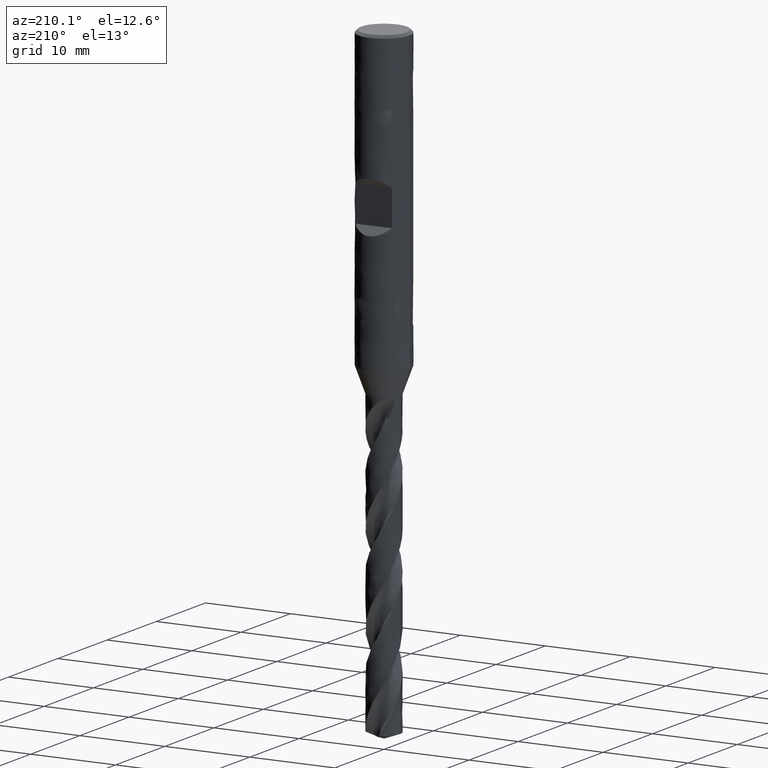
[diagram: clean part render]
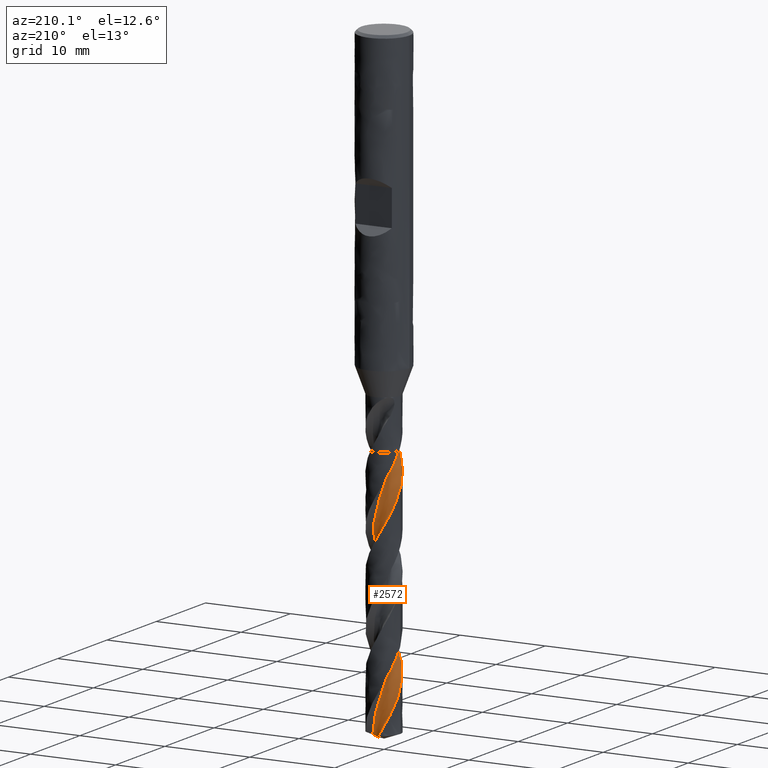
[diagram: same view with one face highlighted and labeled with its STEP entity id]
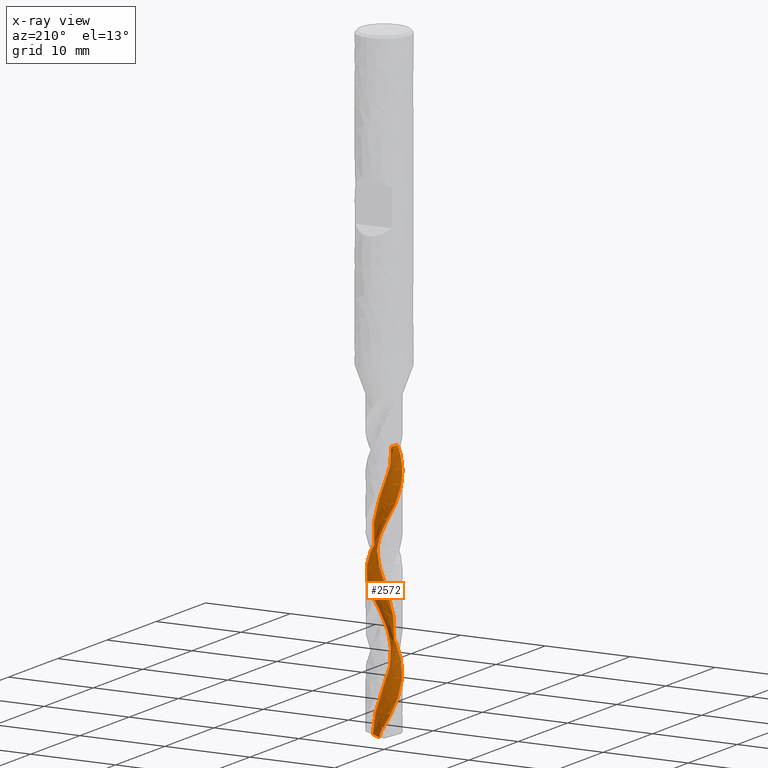
[diagram: x-ray of the same camera — body ghosted, the highlighted face saturated]
A machine part, auxiliary view. The second image highlights one B-rep face of the part: STEP entity #2572.
The next image is the same camera in x-ray: the body ghosted, the highlighted face saturated — about 0% of this face is hidden behind the body in this view.
In plain terms, the highlighted face is a freeform B-spline surface patch.
Its self-contained STEP definition (entity closure, byte-faithful):
#1769 = VERTEX_POINT('', #1770);
#1770 = CARTESIAN_POINT('', (-0.554879832823123, -1.81717042985136, -43.7));
#1858 = VERTEX_POINT('', #1859);
#1859 = CARTESIAN_POINT('', (-1.13653675632473, -0.0502533256192587, -43.7));
#1865 = EDGE_CURVE('', #1858, #1769, #1866, .T.);
#1866 = B_SPLINE_CURVE_WITH_KNOTS('', 3, (#1867, #1868, #1869, #1870, #1871, #1872, #1873, #1874, #1875, #1876, #1877, #1878, #1879, #1880, #1881, #1882, #1883, #1884, #1885, #1886, #1887, #1888, #1889, #1890, #1891, #1892, #1893, #1894, #1895, #1896, #1897, #1898, #1899, #1900, #1901, #1902, #1903, #1904, #1905, #1906, #1907, #1908, #1909, #1910, #1911, #1912, #1913, #1914, #1915, #1916, #1917, #1918, #1919, #1920, #1921, #1922, #1923, #1924), .UNSPECIFIED., .F., .U., (4, 3, 3, 3, 3, 3, 3, 3, 3, 3, 3, 3, 3, 3, 3, 3, 3, 3, 3, 4), (0., 0.132303513609692, 0.264372636405347, 0.396214314546063, 0.527833710006873, 0.659234357472684, 0.790418270429719, 0.92138600326011, 1.05213667331848, 1.09098602628674, 1.10829179019035, 1.24056943773954, 1.37261354178143, 1.50443084523398, 1.63602632662272, 1.76740335102331, 1.89856377109809, 2.02950798469471, 2.16023495271009, 2.17434450928633), .UNSPECIFIED.);
#1867 = CARTESIAN_POINT('', (-1.13653675632473, -0.0502533256192611, -43.7));
#1868 = CARTESIAN_POINT('', (-1.09438894476173, -0.0632331284662391, -43.7));
#1869 = CARTESIAN_POINT('', (-1.05292598997185, -0.0786883515816428, -43.7));
#1870 = CARTESIAN_POINT('', (-1.01256556167941, -0.0964633095154138, -43.7));
#1871 = CARTESIAN_POINT('', (-0.97227663650419, -0.114206777077192, -43.7));
#1872 = CARTESIAN_POINT('', (-0.932951401613381, -0.134321159452028, -43.7));
#1873 = CARTESIAN_POINT('', (-0.894984593949602, -0.156604553464432, -43.7));
#1874 = CARTESIAN_POINT('', (-0.857083171345444, -0.178849571823581, -43.7));
#1875 = CARTESIAN_POINT('', (-0.820408999516332, -0.203330349444563, -43.7));
#1876 = CARTESIAN_POINT('', (-0.7853289410031, -0.229801997899581, -43.7));
#1877 = CARTESIAN_POINT('', (-0.750308026832747, -0.256229015635063, -43.7));
#1878 = CARTESIAN_POINT('', (-0.716759359134212, -0.28472806965997, -43.7));
#1879 = CARTESIAN_POINT('', (-0.685017407258971, -0.315015033635725, -43.7));
#1880 = CARTESIAN_POINT('', (-0.653328209678078, -0.345251661468991, -43.7));
#1881 = CARTESIAN_POINT('', (-0.623334660944919, -0.377370473105049, -43.7));
#1882 = CARTESIAN_POINT('', (-0.595334796371259, -0.411052315244471, -43.7));
#1883 = CARTESIAN_POINT('', (-0.567381115260246, -0.44467860196882, -43.7));
#1884 = CARTESIAN_POINT('', (-0.541322166657722, -0.479973850976576, -43.7));
#1885 = CARTESIAN_POINT('', (-0.517416037763084, -0.51658849897157, -43.7));
#1886 = CARTESIAN_POINT('', (-0.493549304171236, -0.553142809086239, -43.7));
#1887 = CARTESIAN_POINT('', (-0.471749681225075, -0.591132536995063, -43.7));
#1888 = CARTESIAN_POINT('', (-0.452232362625242, -0.630182669324881, -43.7));
#1889 = CARTESIAN_POINT('', (-0.432747391560075, -0.669168080904114, -43.7));
#1890 = CARTESIAN_POINT('', (-0.415473186198753, -0.709338333743225, -43.7));
#1891 = CARTESIAN_POINT('', (-0.400579704468343, -0.750298199653143, -43.7));
#1892 = CARTESIAN_POINT('', (-0.39615447186026, -0.762468418647483, -43.7));
#1893 = CARTESIAN_POINT('', (-0.391935997768373, -0.774715816711509, -43.7));
#1894 = CARTESIAN_POINT('', (-0.387927954619913, -0.787029731772362, -43.7));
#1895 = CARTESIAN_POINT('', (-0.386142538824201, -0.792515066546054, -43.7));
#1896 = CARTESIAN_POINT('', (-0.384398702982784, -0.798014109826625, -43.7));
#1897 = CARTESIAN_POINT('', (-0.382696748391512, -0.80352591150233, -43.7));
#1898 = CARTESIAN_POINT('', (-0.369687756079882, -0.845655699212413, -43.7));
#1899 = CARTESIAN_POINT('', (-0.359109028825215, -0.888613357288154, -43.7));
#1900 = CARTESIAN_POINT('', (-0.35106708800268, -0.931966328135232, -43.7));
#1901 = CARTESIAN_POINT('', (-0.343039345671727, -0.975242756913028, -43.7));
#1902 = CARTESIAN_POINT('', (-0.337512536874864, -1.01905796862662, -43.7));
#1903 = CARTESIAN_POINT('', (-0.33454211738238, -1.06297232325845, -43.7));
#1904 = CARTESIAN_POINT('', (-0.331576799919225, -1.1068112500506, -43.7));
#1905 = CARTESIAN_POINT('', (-0.331149175965941, -1.15089522492411, -43.7));
#1906 = CARTESIAN_POINT('', (-0.333263521593283, -1.19478342553102, -43.7));
#1907 = CARTESIAN_POINT('', (-0.335374309201317, -1.2385977711054, -43.7));
#1908 = CARTESIAN_POINT('', (-0.340025507762213, -1.28236267473643, -43.7));
#1909 = CARTESIAN_POINT('', (-0.347170763139604, -1.32564197265159, -43.7));
#1910 = CARTESIAN_POINT('', (-0.354304156932138, -1.36884942414032, -43.7));
#1911 = CARTESIAN_POINT('', (-0.363946944419523, -1.4117160632377, -43.7));
#1912 = CARTESIAN_POINT('', (-0.376003342987703, -1.45381609203479, -43.7));
#1913 = CARTESIAN_POINT('', (-0.388039863893897, -1.49584670954481, -43.7));
#1914 = CARTESIAN_POINT('', (-0.402521771682163, -1.53725206971976, -43.7));
#1915 = CARTESIAN_POINT('', (-0.41930568912622, -1.5776222413695, -43.7));
#1916 = CARTESIAN_POINT('', (-0.436061939750682, -1.617925866323, -43.7));
#1917 = CARTESIAN_POINT('', (-0.455167752737166, -1.65733040151368, -43.7));
#1918 = CARTESIAN_POINT('', (-0.476434593737539, -1.69544700673039, -43.7));
#1919 = CARTESIAN_POINT('', (-0.497666151565732, -1.73350037384114, -43.7));
#1920 = CARTESIAN_POINT('', (-0.521121211701892, -1.77039495112742, -43.7));
#1921 = CARTESIAN_POINT('', (-0.546569087308262, -1.80576787047824, -43.7));
#1922 = CARTESIAN_POINT('', (-0.549315714466103, -1.809585722406, -43.7));
#1923 = CARTESIAN_POINT('', (-0.552086070702802, -1.81338671982009, -43.7));
#1924 = CARTESIAN_POINT('', (-0.554879835265604, -1.81717042804791, -43.7));
#2507 = EDGE_CURVE('', #1769, #2508, #2510, .T.);
#2508 = VERTEX_POINT('', #2509);
#2509 = CARTESIAN_POINT('', (-1.00305959781003, -1.61365158669434, -44.5560742231712));
#2510 = B_SPLINE_CURVE_WITH_KNOTS('', 3, (#2511, #2512, #2513, #2514, #2515, #2516, #2517, #2518, #2519, #2520), .UNSPECIFIED., .F., .U., (4, 3, 3, 4), (2.26357371496266, 2.58479614301232, 3.02870651329053, 3.25163967382314), .UNSPECIFIED.);
#2511 = CARTESIAN_POINT('', (-0.554879832823123, -1.81717042985136, -43.7));
#2512 = CARTESIAN_POINT('', (-0.606037942692507, -1.8015491083806, -43.7927561002924));
#2513 = CARTESIAN_POINT('', (-0.656553815216799, -1.78375945821128, -43.8855602719784));
#2514 = CARTESIAN_POINT('', (-0.70620764531632, -1.76387946348291, -43.9783188564728));
#2515 = CARTESIAN_POINT('', (-0.774826297628488, -1.73640648821596, -44.1065057263603));
#2516 = CARTESIAN_POINT('', (-0.841868887393447, -1.7049104256208, -44.2347464171882));
#2517 = CARTESIAN_POINT('', (-0.906818248466642, -1.66963488950349, -44.3629352407047));
#2518 = CARTESIAN_POINT('', (-0.939436018422199, -1.65191940619278, -44.4273120642369));
#2519 = CARTESIAN_POINT('', (-0.97153705807839, -1.63324626641696, -44.4916963489493));
#2520 = CARTESIAN_POINT('', (-1.00305959781004, -1.61365158669434, -44.5560742231712));
#2572 = ADVANCED_FACE('', (#2573), #2873, .T.);
#2573 = FACE_OUTER_BOUND('', #2574, .T.);
#2574 = EDGE_LOOP('', (#2575, #2576, #2670, #2772, #2784, #2872));
#2575 = ORIENTED_EDGE('', *, *, #1865, .F.);
#2576 = ORIENTED_EDGE('', *, *, #2577, .F.);
#2577 = EDGE_CURVE('', #2578, #1858, #2580, .T.);
#2578 = VERTEX_POINT('', #2579);
#2579 = CARTESIAN_POINT('', (1.00738676648088, 0.52755884134086, -73.586105437895));
#2580 = (
   BOUNDED_CURVE ()
   B_SPLINE_CURVE (3, (#2581, #2582, #2583, #2584, #2585, #2586, #2587, #2588, #2589, #2590, #2591, #2592, #2593, #2594, #2595, #2596, #2597, #2598, #2599, #2600, #2601, #2602, #2603, #2604, #2605, #2606, #2607, #2608, #2609, #2610, #2611, #2612, #2613, #2614, #2615, #2616, #2617, #2618, #2619, #2620, #2621, #2622, #2623, #2624, #2625, #2626, #2627, #2628, #2629, #2630, #2631, #2632, #2633, #2634, #2635, #2636, #2637, #2638, #2639, #2640, #2641, #2642, #2643, #2644, #2645, #2646, #2647, #2648, #2649, #2650, #2651, #2652, #2653, #2654, #2655, #2656, #2657, #2658, #2659, #2660, #2661, #2662, #2663, #2664, #2665, #2666, #2667, #2668, #2669), .UNSPECIFIED., .F., .U.)
   B_SPLINE_CURVE_WITH_KNOTS ((4, 1, 1, 1, 1, 1, 1, 1, 1, 1, 1, 1, 1, 1, 1, 1, 1, 1, 1, 1, 1, 1, 1, 1, 1, 1, 1, 1, 1, 1, 1, 1, 1, 1, 1, 1, 1, 1, 1, 1, 1, 1, 1, 1, 1, 1, 1, 1, 1, 1, 1, 1, 1, 1, 1, 1, 1, 1, 1, 1, 1, 1, 1, 1, 1, 1, 1, 1, 1, 1, 1, 1, 1, 1, 1, 1, 1, 1, 1, 1, 1, 1, 1, 1, 1, 1, 4), (0.463894562105014, 0.700388349514563, 1.05058252427184, 1.40077669902913, 1.75097087378641, 2.10116504854369, 2.45135922330097, 2.80155339805825, 3.15174757281553, 3.50194174757282, 3.8521359223301, 4.20233009708738, 4.55252427184466, 4.90271844660194, 5.25291262135922, 5.60310679611651, 5.95330097087379, 6.30349514563107, 6.65368932038835, 7.00388349514563, 7.35407766990291, 7.70427184466019, 8.05446601941748, 8.40466019417476, 8.75485436893204, 9.10504854368932, 9.4552427184466, 9.80543689320388, 10.1556310679612, 10.5058252427184, 10.8560194174757, 11.206213592233, 11.5564077669903, 11.9066019417476, 12.2567961165049, 12.6069902912621, 12.9571844660194, 13.3073786407767, 13.657572815534, 14.0077669902913, 14.3579611650485, 14.7081553398058, 15.0583495145631, 15.4085436893204, 15.7587378640777, 16.108932038835, 16.4591262135922, 16.8093203883495, 17.1595145631068, 17.5097087378641, 17.8599029126214, 18.2100970873786, 18.5602912621359, 18.9104854368932, 19.2606796116505, 19.6108737864078, 19.961067961165, 20.3112621359223, 20.6614563106796, 21.0116504854369, 21.3618446601942, 21.7120388349515, 22.0622330097087, 22.412427184466, 22.7626213592233, 23.1128155339806, 23.4630097087379, 23.8132038834951, 24.1633980582524, 24.5135922330097, 24.863786407767, 25.2139805825243, 25.5641747572816, 25.9143689320388, 26.2645631067961, 26.6147572815534, 26.9649514563107, 27.315145631068, 27.6653398058252, 28.0155339805825, 28.3657281553398, 28.7159223300971, 29.0661165048544, 29.4163106796117, 29.7665048543689, 30.1166990291262, 30.35), .UNSPECIFIED.)
   CURVE ()
   GEOMETRIC_REPRESENTATION_ITEM ()
   RATIONAL_B_SPLINE_CURVE ((1., 1., 1., 1., 1., 1., 1., 1., 1., 1., 1., 1., 1., 1., 1., 1., 1., 1., 1., 1., 1., 1., 1., 1., 1., 1., 1., 1., 1., 1., 1., 1., 1., 1., 1., 1., 1., 1., 1., 1., 1., 1., 1., 1., 1., 1., 1., 1., 1., 1., 1., 1., 1., 1., 1., 1., 1., 1., 1., 1., 1., 1., 1., 1., 1., 1., 1., 1., 1., 1., 1., 1., 1., 1., 1., 1., 1., 1., 1., 1., 1., 1., 1., 1., 1., 1., 1., 1., 1.))
   REPRESENTATION_ITEM ('')
);
#2581 = CARTESIAN_POINT('', (1.00738676648088, 0.527558841340862, -73.586105437895));
#2582 = CARTESIAN_POINT('', (0.994250866929033, 0.551107700753258, -73.5072741754251));
#2583 = CARTESIAN_POINT('', (0.959630653127249, 0.608321111319557, -73.3117115213695));
#2584 = CARTESIAN_POINT('', (0.896641838708893, 0.694348097810165, -72.9994174757282));
#2585 = CARTESIAN_POINT('', (0.816527390676239, 0.782664132338583, -72.6492233009709));
#2586 = CARTESIAN_POINT('', (0.727852470372632, 0.861910656729261, -72.2990291262136));
#2587 = CARTESIAN_POINT('', (0.631627188047818, 0.931273381148981, -71.9488349514563));
#2588 = CARTESIAN_POINT('', (0.528936904553238, 0.990048346657625, -71.598640776699));
#2589 = CARTESIAN_POINT('', (0.420931018903718, 1.03764926915779, -71.2484466019417));
#2590 = CARTESIAN_POINT('', (0.308810199483004, 1.07361301184594, -70.8982524271845));
#2591 = CARTESIAN_POINT('', (0.193813403735584, 1.09760389171161, -70.5480582524272));
#2592 = CARTESIAN_POINT('', (0.077204499899433, 1.10941658140296, -70.1978640776699));
#2593 = CARTESIAN_POINT('', (-0.0397412818728468, 1.10897763866533, -69.8476699029126));
#2594 = CARTESIAN_POINT('', (-0.155750950858118, 1.09634564104538, -69.4974757281553));
#2595 = CARTESIAN_POINT('', (-0.269567262303575, 1.07170993623716, -69.1472815533981));
#2596 = CARTESIAN_POINT('', (-0.379961991633743, 1.03538802759353, -68.7970873786408));
#2597 = CARTESIAN_POINT('', (-0.485748839881248, 0.987821629433117, -68.4468932038835));
#2598 = CARTESIAN_POINT('', (-0.585795839017562, 0.929571439764617, -68.0966990291262));
#2599 = CARTESIAN_POINT('', (-0.679037131544928, 0.861310690927636, -67.7465048543689));
#2600 = CARTESIAN_POINT('', (-0.764484005808751, 0.783817550719869, -67.3963106796116));
#2601 = CARTESIAN_POINT('', (-0.841235076677957, 0.697966457883533, -67.0461165048544));
#2602 = CARTESIAN_POINT('', (-0.90848551049658, 0.604718486213479, -66.6959223300971));
#2603 = CARTESIAN_POINT('', (-0.96553520341763, 0.505110840940586, -66.3457281553398));
#2604 = CARTESIAN_POINT('', (-1.01179583328898, 0.400245599348444, -65.9955339805825));
#2605 = CARTESIAN_POINT('', (-1.04679671705546, 0.291277814725761, -65.6453398058252));
#2606 = CARTESIAN_POINT('', (-1.07018941805281, 0.179403108678097, -65.295145631068));
#2607 = CARTESIAN_POINT('', (-1.08175106047221, 0.0658448814702575, -64.9449514563107));
#2608 = CARTESIAN_POINT('', (-1.08138632154095, -0.0481587265933857, -64.5947572815534));
#2609 = CARTESIAN_POINT('', (-1.06912808546368, -0.161367987744552, -64.2445631067961));
#2610 = CARTESIAN_POINT('', (-1.04513675676757, -0.272554717627358, -63.8943689320388));
#2611 = CARTESIAN_POINT('', (-1.00969824426078, -0.380515249520104, -63.5441747572816));
#2612 = CARTESIAN_POINT('', (-0.963220640214853, -0.484083118983579, -63.1939805825243));
#2613 = CARTESIAN_POINT('', (-0.906229632489996, -0.582141329363809, -62.843786407767));
#2614 = CARTESIAN_POINT('', (-0.839362700009741, -0.673634073196358, -62.4935922330097));
#2615 = CARTESIAN_POINT('', (-0.763362154139247, -0.757577790401561, -62.1433980582524));
#2616 = CARTESIAN_POINT('', (-0.679067100011897, -0.833071451163612, -61.7932038834951));
#2617 = CARTESIAN_POINT('', (-0.587404402574032, -0.899305959480305, -61.4430097087379));
#2618 = CARTESIAN_POINT('', (-0.489378751975999, -0.955572582471804, -61.0928155339806));
#2619 = CARTESIAN_POINT('', (-0.386061931836251, -1.00127032055599, -60.7426213592233));
#2620 = CARTESIAN_POINT('', (-0.278581401760821, -1.03591214443464, -60.392427184466));
#2621 = CARTESIAN_POINT('', (-0.168108312239435, -1.05913003638292, -60.0422330097087));
#2622 = CARTESIAN_POINT('', (-0.0558450755994195, -1.07067878548106, -59.6920388349515));
#2623 = CARTESIAN_POINT('', (0.0569873789724449, -1.07043849905293, -59.3418446601942));
#2624 = CARTESIAN_POINT('', (0.16916253527134, -1.05841580555992, -58.9916504854369));
#2625 = CARTESIAN_POINT('', (0.279461271950159, -1.03474373741271, -58.6414563106796));
#2626 = CARTESIAN_POINT('', (0.38668476315442, -0.999680295481925, -58.2912621359223));
#2627 = CARTESIAN_POINT('', (0.489667165512175, -0.953605710381781, -57.941067961165));
#2628 = CARTESIAN_POINT('', (0.587287961254008, -0.897018428740377, -57.5908737864078));
#2629 = CARTESIAN_POINT('', (0.67848383070409, -0.830529865530264, -57.2406796116505));
#2630 = CARTESIAN_POINT('', (0.762259932102684, -0.754857975988107, -56.8904854368932));
#2631 = CARTESIAN_POINT('', (0.837700472647991, -0.670819712583157, -56.5402912621359));
#2632 = CARTESIAN_POINT('', (0.903978461724338, -0.579322443784962, -56.1900970873786));
#2633 = CARTESIAN_POINT('', (0.960364545447123, -0.481354421921666, -55.8399029126214));
#2634 = CARTESIAN_POINT('', (1.00623483082472, -0.377974397108956, -55.4897087378641));
#2635 = CARTESIAN_POINT('', (1.04107761792677, -0.270300482971011, -55.1395145631068));
#2636 = CARTESIAN_POINT('', (1.06449896936055, -0.159498387583057, -54.7893203883495));
#2637 = CARTESIAN_POINT('', (1.07622705798884, -0.0467691296632877, -54.4391262135922));
#2638 = CARTESIAN_POINT('', (1.07611524606232, 0.0666636345358413, -54.0889320388349));
#2639 = CARTESIAN_POINT('', (1.06414386167059, 0.179566543996321, -53.7387378640777));
#2640 = CARTESIAN_POINT('', (1.04042065151574, 0.29070959280755, -53.3885436893204));
#2641 = CARTESIAN_POINT('', (1.00517990235556, 0.398879182980069, -53.0383495145631));
#2642 = CARTESIAN_POINT('', (0.958780236920978, 0.502891035756399, -52.6881553398058));
#2643 = CARTESIAN_POINT('', (0.901701103553615, 0.601602828029668, -52.3379611650485));
#2644 = CARTESIAN_POINT('', (0.834537992104601, 0.693926422864609, -51.9877669902913));
#2645 = CARTESIAN_POINT('', (0.757996421653613, 0.77883956681096, -51.637572815534));
#2646 = CARTESIAN_POINT('', (0.672884758221031, 0.855396931675929, -51.2873786407767));
#2647 = CARTESIAN_POINT('', (0.580105932730254, 0.922740384637381, -50.9371844660194));
#2648 = CARTESIAN_POINT('', (0.480648140911745, 0.98010837797807, -50.5869902912621));
#2649 = CARTESIAN_POINT('', (0.375574617510031, 1.02684435823716, -50.2367961165048));
#2650 = CARTESIAN_POINT('', (0.266012586951585, 1.06240410413108, -49.8866019417476));
#2651 = CARTESIAN_POINT('', (0.153141501454151, 1.08636191310336, -49.5364077669903));
#2652 = CARTESIAN_POINT('', (0.0381806853154028, 1.09841556772547, -49.186213592233));
#2653 = CARTESIAN_POINT('', (-0.0776234892729872, 1.09839002528032, -48.8360194174757));
#2654 = CARTESIAN_POINT('', (-0.193010764150254, 1.08623978660464, -48.4858252427184));
#2655 = CARTESIAN_POINT('', (-0.30672036001083, 1.06204991352033, -48.1356310679612));
#2656 = CARTESIAN_POINT('', (-0.41750440649905, 1.02603567783246, -47.7854368932039));
#2657 = CARTESIAN_POINT('', (-0.524141298579433, 0.978540838742238, -47.4352427184466));
#2658 = CARTESIAN_POINT('', (-0.625448839999078, 0.920034559622908, -47.0850485436893));
#2659 = CARTESIAN_POINT('', (-0.720297036665621, 0.851106988770608, -46.734854368932));
#2660 = CARTESIAN_POINT('', (-0.807620403198964, 0.772463543799467, -46.3846601941748));
#2661 = CARTESIAN_POINT('', (-0.886429658813671, 0.684917948317306, -46.0344660194175));
#2662 = CARTESIAN_POINT('', (-0.95582266157117, 0.589384099672181, -45.6842718446602));
#2663 = CARTESIAN_POINT('', (-1.0149945586117, 0.486866795455612, -45.3340776699029));
#2664 = CARTESIAN_POINT('', (-1.06324668363105, 0.378451595788785, -44.9838834951456));
#2665 = CARTESIAN_POINT('', (-1.0999954379779, 0.26529322305813, -44.6336893203883));
#2666 = CARTESIAN_POINT('', (-1.12477607301299, 0.14860521884313, -44.2834951456311));
#2667 = CARTESIAN_POINT('', (-1.13587090589274, 0.0428777839377289, -43.9722653721683));
#2668 = CARTESIAN_POINT('', (-1.13700754378769, -0.0236451104893632, -43.7777669902913));
#2669 = CARTESIAN_POINT('', (-1.13653675632473, -0.0502533256192587, -43.7));
#2670 = ORIENTED_EDGE('', *, *, #2671, .T.);
#2671 = EDGE_CURVE('', #2578, #2672, #2674, .T.);
#2672 = VERTEX_POINT('', #2673);
#2673 = CARTESIAN_POINT('', (-0.422849418221706, 1.85234941884883, -73.3084565548942));
#2674 = B_SPLINE_CURVE_WITH_KNOTS('', 3, (#2675, #2676, #2677, #2678, #2679, #2680, #2681, #2682, #2683, #2684, #2685, #2686, #2687, #2688, #2689, #2690, #2691, #2692, #2693, #2694, #2695, #2696, #2697, #2698, #2699, #2700, #2701, #2702, #2703, #2704, #2705, #2706, #2707, #2708, #2709, #2710, #2711, #2712, #2713, #2714, #2715, #2716, #2717, #2718, #2719, #2720, #2721, #2722, #2723, #2724, #2725, #2726, #2727, #2728, #2729, #2730, #2731, #2732, #2733, #2734, #2735, #2736, #2737, #2738, #2739, #2740, #2741, #2742, #2743, #2744, #2745, #2746, #2747, #2748, #2749, #2750, #2751, #2752, #2753, #2754, #2755, #2756, #2757, #2758, #2759, #2760, #2761, #2762, #2763, #2764, #2765, #2766, #2767, #2768, #2769, #2770, #2771), .UNSPECIFIED., .F., .U., (4, 3, 3, 3, 3, 3, 3, 3, 3, 3, 3, 3, 3, 3, 3, 3, 3, 3, 3, 3, 3, 3, 3, 3, 3, 3, 3, 3, 3, 3, 3, 3, 4), (0., 0.0877179735328424, 0.17531139596543, 0.262726914588839, 0.32093994372534, 0.379081080427557, 0.437153916912131, 0.495172631739611, 0.553163046769942, 0.611159891967644, 0.669199611723775, 0.727310800119914, 0.785506689582499, 0.843783409873123, 0.902124110223322, 0.960505808481608, 1.01890549282611, 1.07730377296139, 1.10325493755986, 1.12925103803593, 1.15525690558161, 1.18127339822184, 1.26981055362133, 1.35805645638916, 1.4460691490045, 1.53389466052664, 1.62156806744757, 1.70911554514629, 1.79655637216384, 1.88390457923419, 2.01456030082586, 2.14497072328706, 2.2668591368867), .UNSPECIFIED.);
#2675 = CARTESIAN_POINT('', (1.00738676648088, 0.527558841340861, -73.586105437895));
#2676 = CARTESIAN_POINT('', (0.980703021109427, 0.520666065809925, -73.5958730105867));
#2677 = CARTESIAN_POINT('', (0.953603379565592, 0.515087356930402, -73.6055356310622));
#2678 = CARTESIAN_POINT('', (0.926252775233053, 0.510900650456401, -73.6149883570924));
#2679 = CARTESIAN_POINT('', (0.898941006132622, 0.50671988870361, -73.6244276611592));
#2680 = CARTESIAN_POINT('', (0.87131408194851, 0.503917784578729, -73.6336803829962));
#2681 = CARTESIAN_POINT('', (0.843550768963838, 0.502552020638218, -73.6426159916755));
#2682 = CARTESIAN_POINT('', (0.815843843764896, 0.501189030588723, -73.6515334519736));
#2683 = CARTESIAN_POINT('', (0.787930698964514, 0.50125383230659, -73.6601578085202));
#2684 = CARTESIAN_POINT('', (0.760003033631438, 0.502776008013402, -73.6683297748799));
#2685 = CARTESIAN_POINT('', (0.741405031567839, 0.503789677670311, -73.6737717710299));
#2686 = CARTESIAN_POINT('', (0.722772979338331, 0.50545016098904, -73.6790207613493));
#2687 = CARTESIAN_POINT('', (0.704166842690093, 0.50775688426071, -73.6840226845597));
#2688 = CARTESIAN_POINT('', (0.68558368441072, 0.510060758755162, -73.6890184304513));
#2689 = CARTESIAN_POINT('', (0.667002852696339, 0.513012346561601, -73.6937738839845));
#2690 = CARTESIAN_POINT('', (0.648486643780756, 0.516601503140756, -73.6982311307558));
#2691 = CARTESIAN_POINT('', (0.629992186436789, 0.520186443425056, -73.7026831414596));
#2692 = CARTESIAN_POINT('', (0.611537790964017, 0.524412338539247, -73.7068432442157));
#2693 = CARTESIAN_POINT('', (0.59318762167352, 0.529257509276604, -73.7106528053626));
#2694 = CARTESIAN_POINT('', (0.574854554037256, 0.534098164500597, -73.7144588161446));
#2695 = CARTESIAN_POINT('', (0.556600492365933, 0.539563661783616, -73.7179197441217));
#2696 = CARTESIAN_POINT('', (0.538490368058481, 0.545619224374463, -73.7209812126097));
#2697 = CARTESIAN_POINT('', (0.520389077329053, 0.551671833242645, -73.7240411878047));
#2698 = CARTESIAN_POINT('', (0.502406392167275, 0.558322373258098, -73.7267059141664));
#2699 = CARTESIAN_POINT('', (0.484605929477703, 0.565522641717598, -73.7289316523641));
#2700 = CARTESIAN_POINT('', (0.466803493014459, 0.572723708566476, -73.731157637359));
#2701 = CARTESIAN_POINT('', (0.449158613135688, 0.580484493950422, -73.7329472699532));
#2702 = CARTESIAN_POINT('', (0.431730502793974, 0.588745149589859, -73.7342737899534));
#2703 = CARTESIAN_POINT('', (0.414289508604309, 0.597011911974613, -73.7356012905925));
#2704 = CARTESIAN_POINT('', (0.397042172987087, 0.60579011216209, -73.7364666466039));
#2705 = CARTESIAN_POINT('', (0.380039808854501, 0.615012445826522, -73.7368642296538));
#2706 = CARTESIAN_POINT('', (0.363016508441613, 0.624246135638907, -73.7372623022774));
#2707 = CARTESIAN_POINT('', (0.346217416622884, 0.633936263124891, -73.7371921150671));
#2708 = CARTESIAN_POINT('', (0.329683185673429, 0.644013872631649, -73.7366693915726));
#2709 = CARTESIAN_POINT('', (0.313124854941591, 0.654106170949563, -73.7361459061725));
#2710 = CARTESIAN_POINT('', (0.296813472263473, 0.66459807907202, -73.7351683812573));
#2711 = CARTESIAN_POINT('', (0.28077804096802, 0.675424733379841, -73.7337700470359));
#2712 = CARTESIAN_POINT('', (0.264720337357434, 0.686266425303559, -73.7323697706068));
#2713 = CARTESIAN_POINT('', (0.248923649776971, 0.697454074616685, -73.7305466507455));
#2714 = CARTESIAN_POINT('', (0.233406351532869, 0.708930991739061, -73.7283451213538));
#2715 = CARTESIAN_POINT('', (0.217872017366685, 0.720420508984394, -73.7261411749768));
#2716 = CARTESIAN_POINT('', (0.202604915256757, 0.732209162854645, -73.72355663572));
#2717 = CARTESIAN_POINT('', (0.187615178673737, 0.744250199607517, -73.720640618704));
#2718 = CARTESIAN_POINT('', (0.172614908315171, 0.756299697988636, -73.7177225525079));
#2719 = CARTESIAN_POINT('', (0.157882223133674, 0.76860999484744, -73.7144709007239));
#2720 = CARTESIAN_POINT('', (0.143421812898346, 0.781144062069668, -73.7109343307633));
#2721 = CARTESIAN_POINT('', (0.128956947736339, 0.793681990755682, -73.7073966712652));
#2722 = CARTESIAN_POINT('', (0.114756483281341, 0.806450765165264, -73.7035721536516));
#2723 = CARTESIAN_POINT('', (0.100822131567831, 0.819421718583871, -73.6995058009429));
#2724 = CARTESIAN_POINT('', (0.086888114903136, 0.83239236011839, -73.6954395460088));
#2725 = CARTESIAN_POINT('', (0.0732137971058975, 0.845571141381735, -73.6911296947656));
#2726 = CARTESIAN_POINT('', (0.0597997319428991, 0.858935994858113, -73.6866161220371));
#2727 = CARTESIAN_POINT('', (0.0538387582263258, 0.864875099770045, -73.6846103700092));
#2728 = CARTESIAN_POINT('', (0.0479284121899465, 0.870851767299392, -73.6825640700618));
#2729 = CARTESIAN_POINT('', (0.0420687346958441, 0.876864387657772, -73.6804803733246));
#2730 = CARTESIAN_POINT('', (0.0361989108458946, 0.882887419201032, -73.6783930685511));
#2731 = CARTESIAN_POINT('', (0.0303795162588367, 0.8889469545568, -73.676268089923));
#2732 = CARTESIAN_POINT('', (0.024610607219684, 0.895041540735991, -73.6741083931803));
#2733 = CARTESIAN_POINT('', (0.0188395307271391, 0.901138416729669, -73.6719478850117));
#2734 = CARTESIAN_POINT('', (0.0131185934617024, 0.907270776559581, -73.6697524885577));
#2735 = CARTESIAN_POINT('', (0.00744787734060479, 0.913437307367063, -73.6675249579101));
#2736 = CARTESIAN_POINT('', (0.00177484436178778, 0.91960635760493, -73.6652965171709));
#2737 = CARTESIAN_POINT('', (-0.00384828403014026, 0.92580999634585, -73.6630357750843));
#2738 = CARTESIAN_POINT('', (-0.00942139258746713, 0.932047029859419, -73.660745293453));
#2739 = CARTESIAN_POINT('', (-0.0283873302802047, 0.953272381526105, -73.6529505176186));
#2740 = CARTESIAN_POINT('', (-0.0467824888789883, 0.974893022866688, -73.6448095382821));
#2741 = CARTESIAN_POINT('', (-0.0645987713057976, 0.99686974600701, -73.6364080743174));
#2742 = CARTESIAN_POINT('', (-0.0823564451278959, 1.01877417431901, -73.628034247885));
#2743 = CARTESIAN_POINT('', (-0.099549915164917, 1.04104604656771, -73.6193961846609));
#2744 = CARTESIAN_POINT('', (-0.116165118485298, 1.06365382466949, -73.6105597081974));
#2745 = CARTESIAN_POINT('', (-0.132736412298511, 1.08620185650302, -73.6017465841611));
#2746 = CARTESIAN_POINT('', (-0.148741807505106, 1.10909693111862, -73.5927308362709));
#2747 = CARTESIAN_POINT('', (-0.164161487185473, 1.13231096642254, -73.5835637911116));
#2748 = CARTESIAN_POINT('', (-0.179548373044704, 1.15547563125072, -73.574416241976));
#2749 = CARTESIAN_POINT('', (-0.194360363592973, 1.1789706330937, -73.5651128402242));
#2750 = CARTESIAN_POINT('', (-0.208572438857365, 1.20276872371267, -73.555694591565));
#2751 = CARTESIAN_POINT('', (-0.222759900293691, 1.22652559852748, -73.5462926543275));
#2752 = CARTESIAN_POINT('', (-0.236357182806468, 1.25059749947519, -73.5367710000674));
#2753 = CARTESIAN_POINT('', (-0.249334630841084, 1.2749562673911, -73.5271634064603));
#2754 = CARTESIAN_POINT('', (-0.262293438788646, 1.29928004772291, -73.5175696126681));
#2755 = CARTESIAN_POINT('', (-0.27464134376402, 1.32390344204944, -73.5078846810978));
#2756 = CARTESIAN_POINT('', (-0.286344548320911, 1.34879609056182, -73.4981374288943));
#2757 = CARTESIAN_POINT('', (-0.298033495988046, 1.37365841475202, -73.4884020508318));
#2758 = CARTESIAN_POINT('', (-0.309086027316185, 1.39880376627835, -73.4785987889668));
#2759 = CARTESIAN_POINT('', (-0.319464626567683, 1.42419850660943, -73.4687531762984));
#2760 = CARTESIAN_POINT('', (-0.329832232495498, 1.4495663480697, -73.4589179923982));
#2761 = CARTESIAN_POINT('', (-0.339533614349545, 1.47519858511502, -73.4490344803298));
#2762 = CARTESIAN_POINT('', (-0.34852793132389, 1.50105729357336, -73.4391261538107));
#2763 = CARTESIAN_POINT('', (-0.361981658812088, 1.53973683063967, -73.4243052479839));
#2764 = CARTESIAN_POINT('', (-0.373869779076903, 1.57897255212458, -73.4094105013184));
#2765 = CARTESIAN_POINT('', (-0.384043177226545, 1.61861414758966, -73.3945170631799));
#2766 = CARTESIAN_POINT('', (-0.394197475365184, 1.6581813180791, -73.379651586675));
#2767 = CARTESIAN_POINT('', (-0.40265957863026, 1.69821811024167, -73.3647627992418));
#2768 = CARTESIAN_POINT('', (-0.409270165613063, 1.73853964467914, -73.349926116887));
#2769 = CARTESIAN_POINT('', (-0.415448766564502, 1.77622626338441, -73.3360589762002));
#2770 = CARTESIAN_POINT('', (-0.420019833069305, 1.81422486868863, -73.3222139548277));
#2771 = CARTESIAN_POINT('', (-0.422849418221706, 1.85234941884883, -73.3084565548942));
#2772 = ORIENTED_EDGE('', *, *, #2773, .F.);
#2773 = EDGE_CURVE('', #2774, #2672, #2776, .T.);
#2774 = VERTEX_POINT('', #2775);
#2775 = CARTESIAN_POINT('', (-0.706166154767305, 1.76389607456368, -72.7835814676865));
#2776 = B_SPLINE_CURVE_WITH_KNOTS('', 3, (#2777, #2778, #2779, #2780, #2781, #2782, #2783), .UNSPECIFIED., .F., .U., (4, 3, 4), (0., 0.442631279409462, 0.603068373944736), .UNSPECIFIED.);
#2777 = CARTESIAN_POINT('', (-0.706166154767314, 1.76389607456368, -72.7835814676864));
#2778 = CARTESIAN_POINT('', (-0.638687710506981, 1.79091070099216, -72.9119794060499));
#2779 = CARTESIAN_POINT('', (-0.569632998411589, 1.81405637742272, -73.0404305375617));
#2780 = CARTESIAN_POINT('', (-0.499510250112364, 1.8331637979277, -73.1688317358017));
#2781 = CARTESIAN_POINT('', (-0.474093406519733, 1.84008951504822, -73.2153723128887));
#2782 = CARTESIAN_POINT('', (-0.448531594954052, 1.84648675957977, -73.2619155854585));
#2783 = CARTESIAN_POINT('', (-0.422849418221698, 1.85234941884883, -73.3084565548942));
#2784 = ORIENTED_EDGE('', *, *, #2785, .T.);
#2785 = EDGE_CURVE('', #2774, #2508, #2786, .T.);
#2786 = (
   BOUNDED_CURVE ()
   B_SPLINE_CURVE (3, (#2787, #2788, #2789, #2790, #2791, #2792, #2793, #2794, #2795, #2796, #2797, #2798, #2799, #2800, #2801, #2802, #2803, #2804, #2805, #2806, #2807, #2808, #2809, #2810, #2811, #2812, #2813, #2814, #2815, #2816, #2817, #2818, #2819, #2820, #2821, #2822, #2823, #2824, #2825, #2826, #2827, #2828, #2829, #2830, #2831, #2832, #2833, #2834, #2835, #2836, #2837, #2838, #2839, #2840, #2841, #2842, #2843, #2844, #2845, #2846, #2847, #2848, #2849, #2850, #2851, #2852, #2853, #2854, #2855, #2856, #2857, #2858, #2859, #2860, #2861, #2862, #2863, #2864, #2865, #2866, #2867, #2868, #2869, #2870, #2871), .UNSPECIFIED., .F., .U.)
   B_SPLINE_CURVE_WITH_KNOTS ((4, 1, 1, 1, 1, 1, 1, 1, 1, 1, 1, 1, 1, 1, 1, 1, 1, 1, 1, 1, 1, 1, 1, 1, 1, 1, 1, 1, 1, 1, 1, 1, 1, 1, 1, 1, 1, 1, 1, 1, 1, 1, 1, 1, 1, 1, 1, 1, 1, 1, 1, 1, 1, 1, 1, 1, 1, 1, 1, 1, 1, 1, 1, 1, 1, 1, 1, 1, 1, 1, 1, 1, 1, 1, 1, 1, 1, 1, 1, 1, 1, 1, 4), (1.26641853231356, 1.40077669902913, 1.75097087378641, 2.10116504854369, 2.45135922330097, 2.80155339805825, 3.15174757281553, 3.50194174757282, 3.8521359223301, 4.20233009708738, 4.55252427184466, 4.90271844660194, 5.25291262135922, 5.60310679611651, 5.95330097087379, 6.30349514563107, 6.65368932038835, 7.00388349514563, 7.35407766990291, 7.70427184466019, 8.05446601941748, 8.40466019417476, 8.75485436893204, 9.10504854368932, 9.4552427184466, 9.80543689320388, 10.1556310679612, 10.5058252427184, 10.8560194174757, 11.206213592233, 11.5564077669903, 11.9066019417476, 12.2567961165049, 12.6069902912621, 12.9571844660194, 13.3073786407767, 13.657572815534, 14.0077669902913, 14.3579611650485, 14.7081553398058, 15.0583495145631, 15.4085436893204, 15.7587378640777, 16.108932038835, 16.4591262135922, 16.8093203883495, 17.1595145631068, 17.5097087378641, 17.8599029126214, 18.2100970873786, 18.5602912621359, 18.9104854368932, 19.2606796116505, 19.6108737864078, 19.961067961165, 20.3112621359223, 20.6614563106796, 21.0116504854369, 21.3618446601942, 21.7120388349515, 22.0622330097087, 22.412427184466, 22.7626213592233, 23.1128155339806, 23.4630097087379, 23.8132038834951, 24.1633980582524, 24.5135922330097, 24.863786407767, 25.2139805825243, 25.5641747572816, 25.9143689320388, 26.2645631067961, 26.6147572815534, 26.9649514563107, 27.315145631068, 27.6653398058252, 28.0155339805825, 28.3657281553398, 28.7159223300971, 29.0661165048544, 29.4163106796117, 29.4939257768288), .UNSPECIFIED.)
   CURVE ()
   GEOMETRIC_REPRESENTATION_ITEM ()
   RATIONAL_B_SPLINE_CURVE ((1., 1., 1., 1., 1., 1., 1., 1., 1., 1., 1., 1., 1., 1., 1., 1., 1., 1., 1., 1., 1., 1., 1., 1., 1., 1., 1., 1., 1., 1., 1., 1., 1., 1., 1., 1., 1., 1., 1., 1., 1., 1., 1., 1., 1., 1., 1., 1., 1., 1., 1., 1., 1., 1., 1., 1., 1., 1., 1., 1., 1., 1., 1., 1., 1., 1., 1., 1., 1., 1., 1., 1., 1., 1., 1., 1., 1., 1., 1., 1., 1., 1., 1., 1., 1.))
   REPRESENTATION_ITEM ('')
);
#2787 = CARTESIAN_POINT('', (-0.706166154767321, 1.76389607456368, -72.7835814676864));
#2788 = CARTESIAN_POINT('', (-0.729681375791233, 1.75378938978064, -72.7387954121146));
#2789 = CARTESIAN_POINT('', (-0.813711844936844, 1.71565565521253, -72.577277964957));
#2790 = CARTESIAN_POINT('', (-0.953238948281035, 1.63969289444038, -72.2990291262136));
#2791 = CARTESIAN_POINT('', (-1.11746167462137, 1.52654655282358, -71.9488349514563));
#2792 = CARTESIAN_POINT('', (-1.26857505552, 1.39717846664848, -71.598640776699));
#2793 = CARTESIAN_POINT('', (-1.40500102890747, 1.2530770992553, -71.2484466019417));
#2794 = CARTESIAN_POINT('', (-1.52532753436506, 1.09588170802469, -70.8982524271845));
#2795 = CARTESIAN_POINT('', (-1.62832266975189, 0.927364226565894, -70.5480582524272));
#2796 = CARTESIAN_POINT('', (-1.71294684878088, 0.749409722739025, -70.1978640776699));
#2797 = CARTESIAN_POINT('', (-1.7783628820154, 0.563995810688514, -69.8476699029126));
#2798 = CARTESIAN_POINT('', (-1.82394387917648, 0.373171191343583, -69.4974757281553));
#2799 = CARTESIAN_POINT('', (-1.84927890593693, 0.179033560428797, -69.1472815533981));
#2800 = CARTESIAN_POINT('', (-1.85417634836713, -0.0162928872196412, -68.7970873786408));
#2801 = CARTESIAN_POINT('', (-1.8386649627309, -0.210680121419444, -68.4468932038835));
#2802 = CARTESIAN_POINT('', (-1.80299261179467, -0.402018873637111, -68.0966990291262));
#2803 = CARTESIAN_POINT('', (-1.74762271241556, -0.58824093408133, -67.7465048543689));
#2804 = CARTESIAN_POINT('', (-1.67322844229895, -0.767340920179125, -67.3963106796116));
#2805 = CARTESIAN_POINT('', (-1.58068477634185, -0.937397294293911, -67.0461165048544));
#2806 = CARTESIAN_POINT('', (-1.47105844466066, -1.09659241732641, -66.6959223300971));
#2807 = CARTESIAN_POINT('', (-1.34559592504239, -1.24323143569288, -66.3457281553398));
#2808 = CARTESIAN_POINT('', (-1.20570960195845, -1.37575981199034, -65.9955339805825));
#2809 = CARTESIAN_POINT('', (-1.05296224226009, -1.49277932429406, -65.6453398058252));
#2810 = CARTESIAN_POINT('', (-0.889049954065944, -1.59306237533741, -65.295145631068));
#2811 = CARTESIAN_POINT('', (-0.71578381000559, -1.67556447062625, -64.9449514563107));
#2812 = CARTESIAN_POINT('', (-0.535070328764724, -1.73943474366057, -64.5947572815534));
#2813 = CARTESIAN_POINT('', (-0.348891019673648, -1.78402442667942, -64.2445631067961));
#2814 = CARTESIAN_POINT('', (-0.159281203796274, -1.80889318650987, -63.8943689320388));
#2815 = CARTESIAN_POINT('', (0.0316916684627168, -1.81381326697638, -63.5441747572816));
#2816 = CARTESIAN_POINT('', (0.221949978862822, -1.79877140169698, -63.1939805825243));
#2817 = CARTESIAN_POINT('', (0.409427955464379, -1.76396848373927, -62.843786407767));
#2818 = CARTESIAN_POINT('', (0.592093513057452, -1.70981700131022, -62.4935922330097));
#2819 = CARTESIAN_POINT('', (0.767969695926832, -1.63693627118947, -62.1433980582524));
#2820 = CARTESIAN_POINT('', (0.93515550359027, -1.54614552376926, -61.7932038834951));
#2821 = CARTESIAN_POINT('', (1.09184588689935, -1.43845491512077, -61.4430097087379));
#2822 = CARTESIAN_POINT('', (1.23635071073042, -1.31505456226154, -61.0928155339806));
#2823 = CARTESIAN_POINT('', (1.36711249032625, -1.17730171755161, -60.7426213592233));
#2824 = CARTESIAN_POINT('', (1.48272272106654, -1.02670621671078, -60.392427184466));
#2825 = CARTESIAN_POINT('', (1.58193663592069, -0.864914352147524, -60.0422330097087));
#2826 = CARTESIAN_POINT('', (1.66368624092486, -0.693691338959867, -59.6920388349515));
#2827 = CARTESIAN_POINT('', (1.72709149656972, -0.514902554960629, -59.3418446601942));
#2828 = CARTESIAN_POINT('', (1.77146953181322, -0.330493748261848, -58.9916504854369));
#2829 = CARTESIAN_POINT('', (1.79634179736085, -0.142470416210563, -58.6414563106796));
#2830 = CARTESIAN_POINT('', (1.80143908569109, 0.0471234322964007, -58.2912621359223));
#2831 = CARTESIAN_POINT('', (1.78670436684355, 0.236226912955332, -57.941067961165));
#2832 = CARTESIAN_POINT('', (1.75229341102414, 0.422784078515327, -57.5908737864078));
#2833 = CARTESIAN_POINT('', (1.69857319140226, 0.604765683631821, -57.2406796116505));
#2834 = CARTESIAN_POINT('', (1.62611808286431, 0.780190678622295, -56.8904854368932));
#2835 = CARTESIAN_POINT('', (1.53570389472896, 0.94714721127313, -56.5402912621359));
#2836 = CARTESIAN_POINT('', (1.42829979730922, 1.10381292067244, -56.1900970873786));
#2837 = CARTESIAN_POINT('', (1.30505822351058, 1.24847431401038, -55.8399029126214));
#2838 = CARTESIAN_POINT('', (1.16730284717947, 1.37954502633009, -55.4897087378641));
#2839 = CARTESIAN_POINT('', (1.01651475945985, 1.49558277424581, -55.1395145631068));
#2840 = CARTESIAN_POINT('', (0.854316982789853, 1.59530482756482, -54.7893203883495));
#2841 = CARTESIAN_POINT('', (0.682457479192761, 1.67760183743702, -54.4391262135922));
#2842 = CARTESIAN_POINT('', (0.502790825021525, 1.7415498759702, -54.0889320388349));
#2843 = CARTESIAN_POINT('', (0.317258738147882, 1.78642056003778, -53.7387378640777));
#2844 = CARTESIAN_POINT('', (0.12786965560858, 1.81168915109937, -53.3885436893204));
#2845 = CARTESIAN_POINT('', (-0.0633224301902383, 1.81704054307248, -53.0383495145631));
#2846 = CARTESIAN_POINT('', (-0.254239660558131, 1.80237307144326, -52.6881553398058));
#2847 = CARTESIAN_POINT('', (-0.442802302813261, 1.76780009868247, -52.3379611650485));
#2848 = CARTESIAN_POINT('', (-0.626950819960248, 1.71364935343133, -51.9877669902913));
#2849 = CARTESIAN_POINT('', (-0.80466779042188, 1.64046002362298, -51.637572815534));
#2850 = CARTESIAN_POINT('', (-0.973999451242669, 1.54897762649068, -51.2873786407767));
#2851 = CARTESIAN_POINT('', (-1.13307664119133, 1.44014670106085, -50.9371844660194));
#2852 = CARTESIAN_POINT('', (-1.28013492543987, 1.31510139101625, -50.5869902912621));
#2853 = CARTESIAN_POINT('', (-1.41353369094884, 1.17515400752271, -50.2367961165048));
#2854 = CARTESIAN_POINT('', (-1.53177401128038, 1.02178168252639, -49.8866019417476));
#2855 = CARTESIAN_POINT('', (-1.63351509121026, 0.856611242937826, -49.5364077669903));
#2856 = CARTESIAN_POINT('', (-1.71758911511517, 0.681402454824974, -49.186213592233));
#2857 = CARTESIAN_POINT('', (-1.78301433855016, 0.498029804046279, -48.8360194174757));
#2858 = CARTESIAN_POINT('', (-1.82900627956255, 0.308462995492823, -48.4858252427184));
#2859 = CARTESIAN_POINT('', (-1.85498688495488, 0.114746367099409, -48.1356310679612));
#2860 = CARTESIAN_POINT('', (-1.86059156674114, -0.0810225730839463, -47.7854368932039));
#2861 = CARTESIAN_POINT('', (-1.84567402523012, -0.276715268464776, -47.4352427184466));
#2862 = CARTESIAN_POINT('', (-1.8103087973884, -0.470194667560321, -47.0850485436893));
#2863 = CARTESIAN_POINT('', (-1.75479149190428, -0.659337978617539, -46.734854368932));
#2864 = CARTESIAN_POINT('', (-1.67963669646112, -0.842059386265609, -46.3846601941748));
#2865 = CARTESIAN_POINT('', (-1.58557356421805, -1.01633250661954, -46.0344660194175));
#2866 = CARTESIAN_POINT('', (-1.47353911891015, -1.18021229727024, -45.6842718446602));
#2867 = CARTESIAN_POINT('', (-1.34466930974709, -1.33185637105858, -45.3340776699029));
#2868 = CARTESIAN_POINT('', (-1.20028798975661, -1.4695448148567, -44.9838834951456));
#2869 = CARTESIAN_POINT('', (-1.08298982199421, -1.56000680375687, -44.7245490129017));
#2870 = CARTESIAN_POINT('', (-1.01541686941552, -1.60553304465021, -44.5819459222436));
#2871 = CARTESIAN_POINT('', (-1.00305959781003, -1.61365158669435, -44.5560742231712));
#2872 = ORIENTED_EDGE('', *, *, #2507, .F.);
#2873 = (
   BOUNDED_SURFACE ()
   B_SPLINE_SURFACE (3, 2, ((#2874, #2875, #2876, #2877, #2878), (#2879, #2880, #2881, #2882, #2883), (#2884, #2885, #2886, #2887, #2888), (#2889, #2890, #2891, #2892, #2893), (#2894, #2895, #2896, #2897, #2898), (#2899, #2900, #2901, #2902, #2903), (#2904, #2905, #2906, #2907, #2908), (#2909, #2910, #2911, #2912, #2913), (#2914, #2915, #2916, #2917, #2918), (#2919, #2920, #2921, #2922, #2923), (#2924, #2925, #2926, #2927, #2928), (#2929, #2930, #2931, #2932, #2933), (#2934, #2935, #2936, #2937, #2938), (#2939, #2940, #2941, #2942, #2943), (#2944, #2945, #2946, #2947, #2948), (#2949, #2950, #2951, #2952, #2953), (#2954, #2955, #2956, #2957, #2958), (#2959, #2960, #2961, #2962, #2963), (#2964, #2965, #2966, #2967, #2968), (#2969, #2970, #2971, #2972, #2973), (#2974, #2975, #2976, #2977, #2978), (#2979, #2980, #2981, #2982, #2983), (#2984, #2985, #2986, #2987, #2988), (#2989, #2990, #2991, #2992, #2993), (#2994, #2995, #2996, #2997, #2998), (#2999, #3000, #3001, #3002, #3003), (#3004, #3005, #3006, #3007, #3008), (#3009, #3010, #3011, #3012, #3013), (#3014, #3015, #3016, #3017, #3018), (#3019, #3020, #3021, #3022, #3023), (#3024, #3025, #3026, #3027, #3028), (#3029, #3030, #3031, #3032, #3033), (#3034, #3035, #3036, #3037, #3038), (#3039, #3040, #3041, #3042, #3043), (#3044, #3045, #3046, #3047, #3048), (#3049, #3050, #3051, #3052, #3053), (#3054, #3055, #3056, #3057, #3058), (#3059, #3060, #3061, #3062, #3063), (#3064, #3065, #3066, #3067, #3068), (#3069, #3070, #3071, #3072, #3073), (#3074, #3075, #3076, #3077, #3078), (#3079, #3080, #3081, #3082, #3083), (#3084, #3085, #3086, #3087, #3088), (#3089, #3090, #3091, #3092, #3093), (#3094, #3095, #3096, #3097, #3098), (#3099, #3100, #3101, #3102, #3103), (#3104, #3105, #3106, #3107, #3108), (#3109, #3110, #3111, #3112, #3113), (#3114, #3115, #3116, #3117, #3118), (#3119, #3120, #3121, #3122, #3123), (#3124, #3125, #3126, #3127, #3128), (#3129, #3130, #3131, #3132, #3133), (#3134, #3135, #3136, #3137, #3138), (#3139, #3140, #3141, #3142, #3143), (#3144, #3145, #3146, #3147, #3148), (#3149, #3150, #3151, #3152, #3153), (#3154, #3155, #3156, #3157, #3158), (#3159, #3160, #3161, #3162, #3163), (#3164, #3165, #3166, #3167, #3168), (#3169, #3170, #3171, #3172, #3173), (#3174, #3175, #3176, #3177, #3178), (#3179, #3180, #3181, #3182, #3183), (#3184, #3185, #3186, #3187, #3188), (#3189, #3190, #3191, #3192, #3193), (#3194, #3195, #3196, #3197, #3198), (#3199, #3200, #3201, #3202, #3203), (#3204, #3205, #3206, #3207, #3208), (#3209, #3210, #3211, #3212, #3213), (#3214, #3215, #3216, #3217, #3218), (#3219, #3220, #3221, #3222, #3223), (#3224, #3225, #3226, #3227, #3228), (#3229, #3230, #3231, #3232, #3233), (#3234, #3235, #3236, #3237, #3238), (#3239, #3240, #3241, #3242, #3243), (#3244, #3245, #3246, #3247, #3248), (#3249, #3250, #3251, #3252, #3253), (#3254, #3255, #3256, #3257, #3258), (#3259, #3260, #3261, #3262, #3263), (#3264, #3265, #3266, #3267, #3268), (#3269, #3270, #3271, #3272, #3273), (#3274, #3275, #3276, #3277, #3278), (#3279, #3280, #3281, #3282, #3283), (#3284, #3285, #3286, #3287, #3288), (#3289, #3290, #3291, #3292, #3293), (#3294, #3295, #3296, #3297, #3298), (#3299, #3300, #3301, #3302, #3303), (#3304, #3305, #3306, #3307, #3308), (#3309, #3310, #3311, #3312, #3313), (#3314, #3315, #3316, #3317, #3318)), .UNSPECIFIED., .F., .F., .U.)
   B_SPLINE_SURFACE_WITH_KNOTS ((4, 1, 1, 1, 1, 1, 1, 1, 1, 1, 1, 1, 1, 1, 1, 1, 1, 1, 1, 1, 1, 1, 1, 1, 1, 1, 1, 1, 1, 1, 1, 1, 1, 1, 1, 1, 1, 1, 1, 1, 1, 1, 1, 1, 1, 1, 1, 1, 1, 1, 1, 1, 1, 1, 1, 1, 1, 1, 1, 1, 1, 1, 1, 1, 1, 1, 1, 1, 1, 1, 1, 1, 1, 1, 1, 1, 1, 1, 1, 1, 1, 1, 1, 1, 1, 1, 4), (3, 2, 3), (0.312737697717399, 0.700388349514563, 1.05058252427184, 1.40077669902913, 1.75097087378641, 2.10116504854369, 2.45135922330097, 2.80155339805825, 3.15174757281553, 3.50194174757282, 3.8521359223301, 4.20233009708738, 4.55252427184466, 4.90271844660194, 5.25291262135922, 5.60310679611651, 5.95330097087379, 6.30349514563107, 6.65368932038835, 7.00388349514563, 7.35407766990291, 7.70427184466019, 8.05446601941748, 8.40466019417476, 8.75485436893204, 9.10504854368932, 9.4552427184466, 9.80543689320388, 10.1556310679612, 10.5058252427184, 10.8560194174757, 11.206213592233, 11.5564077669903, 11.9066019417476, 12.2567961165049, 12.6069902912621, 12.9571844660194, 13.3073786407767, 13.657572815534, 14.0077669902913, 14.3579611650485, 14.7081553398058, 15.0583495145631, 15.4085436893204, 15.7587378640777, 16.108932038835, 16.4591262135922, 16.8093203883495, 17.1595145631068, 17.5097087378641, 17.8599029126214, 18.2100970873786, 18.5602912621359, 18.9104854368932, 19.2606796116505, 19.6108737864078, 19.961067961165, 20.3112621359223, 20.6614563106796, 21.0116504854369, 21.3618446601942, 21.7120388349515, 22.0622330097087, 22.412427184466, 22.7626213592233, 23.1128155339806, 23.4630097087379, 23.8132038834951, 24.1633980582524, 24.5135922330097, 24.863786407767, 25.2139805825243, 25.5641747572816, 25.9143689320388, 26.2645631067961, 26.6147572815534, 26.9649514563107, 27.315145631068, 27.6653398058252, 28.0155339805825, 28.3657281553398, 28.7159223300971, 29.0661165048544, 29.4163106796117, 29.7665048543689, 30.1166990291262, 30.35), (0., 0.5, 1.), .UNSPECIFIED.)
   GEOMETRIC_REPRESENTATION_ITEM ()
   RATIONAL_B_SPLINE_SURFACE (((1., 0.887010833178222, 1., 0.887010833178222, 1.), (1., 0.887010833178222, 1., 0.887010833178222, 1.), (1., 0.887010833178222, 1., 0.887010833178222, 1.), (1., 0.887010833178222, 1., 0.887010833178222, 1.), (1., 0.887010833178221, 1., 0.887010833178221, 1.), (1., 0.887010833178222, 1., 0.887010833178222, 1.), (1., 0.887010833178222, 1., 0.887010833178222, 1.), (1., 0.887010833178222, 1., 0.887010833178222, 1.), (1., 0.887010833178222, 1., 0.887010833178222, 1.), (1., 0.887010833178221, 1., 0.887010833178221, 1.), (1., 0.887010833178222, 1., 0.887010833178222, 1.), (1., 0.887010833178222, 1., 0.887010833178222, 1.), (1., 0.887010833178221, 1., 0.887010833178221, 1.), (1., 0.887010833178222, 1., 0.887010833178222, 1.), (1., 0.887010833178222, 1., 0.887010833178222, 1.), (1., 0.887010833178222, 1., 0.887010833178222, 1.), (1., 0.887010833178222, 1., 0.887010833178222, 1.), (1., 0.887010833178222, 1., 0.887010833178222, 1.), (1., 0.887010833178222, 1., 0.887010833178222, 1.), (1., 0.887010833178222, 1., 0.887010833178222, 1.), (1., 0.887010833178222, 1., 0.887010833178222, 1.), (1., 0.887010833178222, 1., 0.887010833178222, 1.), (1., 0.887010833178222, 1., 0.887010833178222, 1.), (1., 0.887010833178221, 1., 0.887010833178221, 1.), (1., 0.887010833178222, 1., 0.887010833178222, 1.), (1., 0.887010833178222, 1., 0.887010833178222, 1.), (1., 0.887010833178222, 1., 0.887010833178222, 1.), (1., 0.887010833178222, 1., 0.887010833178222, 1.), (1., 0.887010833178222, 1., 0.887010833178222, 1.), (1., 0.887010833178222, 1., 0.887010833178222, 1.), (1., 0.887010833178222, 1., 0.887010833178222, 1.), (1., 0.887010833178221, 1., 0.887010833178221, 1.), (1., 0.887010833178222, 1., 0.887010833178222, 1.), (1., 0.887010833178222, 1., 0.887010833178222, 1.), (1., 0.887010833178222, 1., 0.887010833178222, 1.), (1., 0.887010833178222, 1., 0.887010833178222, 1.), (1., 0.887010833178222, 1., 0.887010833178222, 1.), (1., 0.887010833178222, 1., 0.887010833178222, 1.), (1., 0.887010833178222, 1., 0.887010833178222, 1.), (1., 0.887010833178222, 1., 0.887010833178222, 1.), (1., 0.887010833178222, 1., 0.887010833178222, 1.), (1., 0.887010833178222, 1., 0.887010833178222, 1.), (1., 0.887010833178222, 1., 0.887010833178222, 1.), (1., 0.887010833178222, 1., 0.887010833178222, 1.), (1., 0.887010833178222, 1., 0.887010833178222, 1.), (1., 0.887010833178222, 1., 0.887010833178222, 1.), (1., 0.887010833178222, 1., 0.887010833178222, 1.), (1., 0.887010833178222, 1., 0.887010833178222, 1.), (1., 0.887010833178222, 1., 0.887010833178222, 1.), (1., 0.887010833178222, 1., 0.887010833178222, 1.), (1., 0.887010833178222, 1., 0.887010833178222, 1.), (1., 0.887010833178222, 1., 0.887010833178222, 1.), (1., 0.887010833178222, 1., 0.887010833178222, 1.), (1., 0.887010833178222, 1., 0.887010833178222, 1.), (1., 0.887010833178222, 1., 0.887010833178222, 1.), (1., 0.887010833178222, 1., 0.887010833178222, 1.), (1., 0.887010833178222, 1., 0.887010833178222, 1.), (1., 0.887010833178222, 1., 0.887010833178222, 1.), (1., 0.887010833178222, 1., 0.887010833178222, 1.), (1., 0.887010833178222, 1., 0.887010833178222, 1.), (1., 0.887010833178222, 1., 0.887010833178222, 1.), (1., 0.887010833178222, 1., 0.887010833178222, 1.), (1., 0.887010833178222, 1., 0.887010833178222, 1.), (1., 0.887010833178222, 1., 0.887010833178222, 1.), (1., 0.887010833178222, 1., 0.887010833178222, 1.), (1., 0.887010833178222, 1., 0.887010833178222, 1.), (1., 0.887010833178222, 1., 0.887010833178222, 1.), (1., 0.887010833178222, 1., 0.887010833178222, 1.), (1., 0.887010833178222, 1., 0.887010833178222, 1.), (1., 0.887010833178222, 1., 0.887010833178222, 1.), (1., 0.887010833178222, 1., 0.887010833178222, 1.), (1., 0.887010833178222, 1., 0.887010833178222, 1.), (1., 0.887010833178222, 1., 0.887010833178222, 1.), (1., 0.887010833178222, 1., 0.887010833178222, 1.), (1., 0.887010833178222, 1., 0.887010833178222, 1.), (1., 0.887010833178222, 1., 0.887010833178222, 1.), (1., 0.887010833178222, 1., 0.887010833178222, 1.), (1., 0.887010833178222, 1., 0.887010833178222, 1.), (1., 0.887010833178222, 1., 0.887010833178222, 1.), (1., 0.887010833178222, 1., 0.887010833178222, 1.), (1., 0.887010833178222, 1., 0.887010833178222, 1.), (1., 0.887010833178222, 1., 0.887010833178222, 1.), (1., 0.887010833178222, 1., 0.887010833178222, 1.), (1., 0.887010833178222, 1., 0.887010833178222, 1.), (1., 0.887010833178222, 1., 0.887010833178222, 1.), (1., 0.887010833178222, 1., 0.887010833178222, 1.), (1., 0.887010833178222, 1., 0.887010833178222, 1.), (1., 0.887010833178222, 1., 0.887010833178222, 1.), (1., 0.887010833178222, 1., 0.887010833178222, 1.)))
   REPRESENTATION_ITEM ('')
   SURFACE ()
);
#2874 = CARTESIAN_POINT('', (-0.179738702068981, 1.90570033658232, -73.7372623022826));
#2875 = CARTESIAN_POINT('', (-0.329588007460516, 1.3309139394917, -73.7372623022826));
#2876 = CARTESIAN_POINT('', (0.0552994141696131, 0.878480641338647, -73.7372623022826));
#2877 = CARTESIAN_POINT('', (0.440186835799742, 0.426047343185592, -73.7372623022826));
#2878 = CARTESIAN_POINT('', (1.03156085258118, 0.481823582593852, -73.7372623022826));
#2879 = CARTESIAN_POINT('', (-0.253596916050636, 1.89674019098324, -73.6080454183502));
#2880 = CARTESIAN_POINT('', (-0.380957885849877, 1.31672765402364, -73.6080454183502));
#2881 = CARTESIAN_POINT('', (0.0211093183261683, 0.879718131261737, -73.6080454183502));
#2882 = CARTESIAN_POINT('', (0.423176522502214, 0.442708608499839, -73.6080454183502));
#2883 = CARTESIAN_POINT('', (1.0117700405913, 0.521404416024965, -73.6080454183502));
#2884 = CARTESIAN_POINT('', (-0.392969985052469, 1.87156526537514, -73.3620971428321));
#2885 = CARTESIAN_POINT('', (-0.477017268488955, 1.28410145274066, -73.3620971428321));
#2886 = CARTESIAN_POINT('', (-0.0440026267421015, 0.878298548560644, -73.3620971428321));
#2887 = CARTESIAN_POINT('', (0.389012015004751, 0.472495644380627, -73.3620971428321));
#2888 = CARTESIAN_POINT('', (0.969793288643207, 0.594441489734148, -73.3620971428321));
#2889 = CARTESIAN_POINT('', (-0.592510333431207, 1.81221968130809, -72.9994174757282));
#2890 = CARTESIAN_POINT('', (-0.612072203885088, 1.22088302862463, -72.9994174757281));
#2891 = CARTESIAN_POINT('', (-0.138897803919719, 0.865682112522277, -72.9994174757282));
#2892 = CARTESIAN_POINT('', (0.33427659604565, 0.510481196419928, -72.9994174757281));
#2893 = CARTESIAN_POINT('', (0.896641838708893, 0.694348097810165, -72.9994174757282));
#2894 = CARTESIAN_POINT('', (-0.777635057057047, 1.73529694598297, -72.6492233009709));
#2895 = CARTESIAN_POINT('', (-0.735049614149447, 1.14674302524497, -72.6492233009709));
#2896 = CARTESIAN_POINT('', (-0.228508460219239, 0.844046317402342, -72.6492233009709));
#2897 = CARTESIAN_POINT('', (0.278032693710969, 0.541349609559716, -72.6492233009709));
#2898 = CARTESIAN_POINT('', (0.816527390676239, 0.782664132338583, -72.6492233009709));
#2899 = CARTESIAN_POINT('', (-0.953238948281035, 1.63969289444038, -72.2990291262136));
#2900 = CARTESIAN_POINT('', (-0.849299759976492, 1.06037974692716, -72.2990291262136));
#2901 = CARTESIAN_POINT('', (-0.315137141682609, 0.813241374826625, -72.2990291262136));
#2902 = CARTESIAN_POINT('', (0.219025476611275, 0.566103002726089, -72.2990291262136));
#2903 = CARTESIAN_POINT('', (0.727852470372632, 0.861910656729261, -72.2990291262136));
#2904 = CARTESIAN_POINT('', (-1.11746167462137, 1.52654655282358, -71.9488349514563));
#2905 = CARTESIAN_POINT('', (-0.953625679968601, 0.96279752196072, -71.9488349514563));
#2906 = CARTESIAN_POINT('', (-0.397857042912389, 0.773650951789977, -71.9488349514563));
#2907 = CARTESIAN_POINT('', (0.157911594143824, 0.584504381619235, -71.9488349514563));
#2908 = CARTESIAN_POINT('', (0.631627188047818, 0.931273381148981, -71.9488349514563));
#2909 = CARTESIAN_POINT('', (-1.26857505552, 1.39717846664848, -71.598640776699));
#2910 = CARTESIAN_POINT('', (-1.04694329421437, 0.855115240269926, -71.598640776699));
#2911 = CARTESIAN_POINT('', (-0.475788338360591, 0.725750656959646, -71.598640776699));
#2912 = CARTESIAN_POINT('', (0.0953666174931817, 0.596386073649366, -71.598640776699));
#2913 = CARTESIAN_POINT('', (0.528936904553238, 0.990048346657625, -71.598640776699));
#2914 = CARTESIAN_POINT('', (-1.40500102890747, 1.2530770992553, -71.2484466019417));
#2915 = CARTESIAN_POINT('', (-1.128292688129, 0.738554811246709, -71.2484466019417));
#2916 = CARTESIAN_POINT('', (-0.548107320062186, 0.670103153888054, -71.2484466019417));
#2917 = CARTESIAN_POINT('', (0.0320780480046248, 0.601651496529399, -71.2484466019417));
#2918 = CARTESIAN_POINT('', (0.420931018903718, 1.03764926915779, -71.2484466019417));
#2919 = CARTESIAN_POINT('', (-1.52532753436506, 1.09588170802469, -70.8982524271845));
#2920 = CARTESIAN_POINT('', (-1.19684754658757, 0.614427347568196, -70.8982524271844));
#2921 = CARTESIAN_POINT('', (-0.614054842185731, 0.60735152472784, -70.8982524271845));
#2922 = CARTESIAN_POINT('', (-0.0312621377838942, 0.600275701887485, -70.8982524271844));
#2923 = CARTESIAN_POINT('', (0.308810199483004, 1.07361301184594, -70.8982524271845));
#2924 = CARTESIAN_POINT('', (-1.62832266975189, 0.927364226565894, -70.5480582524272));
#2925 = CARTESIAN_POINT('', (-1.25192325948627, 0.484118828094857, -70.5480582524272));
#2926 = CARTESIAN_POINT('', (-0.672944052822243, 0.538212058399094, -70.5480582524272));
#2927 = CARTESIAN_POINT('', (-0.0939648461582143, 0.592305288703332, -70.5480582524272));
#2928 = CARTESIAN_POINT('', (0.193813403735584, 1.09760389171161, -70.5480582524272));
#2929 = CARTESIAN_POINT('', (-1.71294684878088, 0.749409722739025, -70.1978640776699));
#2930 = CARTESIAN_POINT('', (-1.29298346002979, 0.349074964064898, -70.1978640776699));
#2931 = CARTESIAN_POINT('', (-0.724167320144182, 0.463466248259122, -70.1978640776699));
#2932 = CARTESIAN_POINT('', (-0.155351180258571, 0.577857532453347, -70.1978640776699));
#2933 = CARTESIAN_POINT('', (0.077204499899433, 1.10941658140296, -70.1978640776699));
#2934 = CARTESIAN_POINT('', (-1.7783628820154, 0.563995810688514, -69.8476699029126));
#2935 = CARTESIAN_POINT('', (-1.31964498096194, 0.210785544712352, -69.8476699029126));
#2936 = CARTESIAN_POINT('', (-0.767202290547029, 0.383952165471039, -69.8476699029126));
#2937 = CARTESIAN_POINT('', (-0.21475960013212, 0.557118786229725, -69.8476699029126));
#2938 = CARTESIAN_POINT('', (-0.0397412818728468, 1.10897763866533, -69.8476699029126));
#2939 = CARTESIAN_POINT('', (-1.82394387917648, 0.373171191343583, -69.4974757281553));
#2940 = CARTESIAN_POINT('', (-1.33168117492102, 0.0707683967302997, -69.4974757281553));
#2941 = CARTESIAN_POINT('', (-0.801617019859474, 0.300555279971499, -69.4974757281553));
#2942 = CARTESIAN_POINT('', (-0.271552864797925, 0.530342163212699, -69.4974757281553));
#2943 = CARTESIAN_POINT('', (-0.155750950858118, 1.09634564104538, -69.4974757281553));
#2944 = CARTESIAN_POINT('', (-1.84927890593693, 0.179033560428797, -69.1472815533981));
#2945 = CARTESIAN_POINT('', (-1.32902357695331, -0.0694468659913673, -69.1472815533981));
#2946 = CARTESIAN_POINT('', (-0.827074130094362, 0.214198832808744, -69.1472815533981));
#2947 = CARTESIAN_POINT('', (-0.325124683235417, 0.497844531608854, -69.1472815533981));
#2948 = CARTESIAN_POINT('', (-0.269567262303575, 1.07170993623716, -69.1472815533981));
#2949 = CARTESIAN_POINT('', (-1.85417634836713, -0.0162928872196412, -68.7970873786408));
#2950 = CARTESIAN_POINT('', (-1.31176190028982, -0.208335135304804, -68.7970873786408));
#2951 = CARTESIAN_POINT('', (-0.843333954027508, 0.125833860404074, -68.7970873786408));
#2952 = CARTESIAN_POINT('', (-0.374906007765193, 0.460002856112952, -68.7970873786408));
#2953 = CARTESIAN_POINT('', (-0.379961991633743, 1.03538802759353, -68.7970873786408));
#2954 = CARTESIAN_POINT('', (-1.8386649627309, -0.210680121419444, -68.4468932038835));
#2955 = CARTESIAN_POINT('', (-1.28014237459504, -0.344391975145834, -68.4468932038835));
#2956 = CARTESIAN_POINT('', (-0.850256640544864, 0.0364289761489621, -68.4468932038835));
#2957 = CARTESIAN_POINT('', (-0.42037090649469, 0.417249927443758, -68.4468932038835));
#2958 = CARTESIAN_POINT('', (-0.485748839881248, 0.987821629433117, -68.4468932038835));
#2959 = CARTESIAN_POINT('', (-1.80299261179467, -0.402018873637111, -68.0966990291262));
#2960 = CARTESIAN_POINT('', (-1.23456445243742, -0.47614949503317, -68.0966990291262));
#2961 = CARTESIAN_POINT('', (-0.847803204410712, -0.0530399839090897, -68.0966990291262));
#2962 = CARTESIAN_POINT('', (-0.461041956384001, 0.370069527214991, -68.0966990291262));
#2963 = CARTESIAN_POINT('', (-0.585795839017562, 0.929571439764617, -68.0966990291262));
#2964 = CARTESIAN_POINT('', (-1.74762271241556, -0.58824093408133, -67.7465048543689));
#2965 = CARTESIAN_POINT('', (-1.17557592626923, -0.602191768204843, -67.7465048543689));
#2966 = CARTESIAN_POINT('', (-0.836035514953539, -0.141600343624821, -67.7465048543689));
#2967 = CARTESIAN_POINT('', (-0.496495103637847, 0.318991080955201, -67.7465048543689));
#2968 = CARTESIAN_POINT('', (-0.679037131544928, 0.861310690927636, -67.7465048543689));
#2969 = CARTESIAN_POINT('', (-1.67322844229895, -0.767340920179125, -67.3963106796116));
#2970 = CARTESIAN_POINT('', (-1.10386651411574, -0.721169637453342, -67.3963106796116));
#2971 = CARTESIAN_POINT('', (-0.815115228986725, -0.228292890234133, -67.3963106796116));
#2972 = CARTESIAN_POINT('', (-0.526363943857712, 0.264583856985075, -67.3963106796116));
#2973 = CARTESIAN_POINT('', (-0.764484005808751, 0.783817550719869, -67.3963106796116));
#2974 = CARTESIAN_POINT('', (-1.58068477634185, -0.937397294293911, -67.0461165048544));
#2975 = CARTESIAN_POINT('', (-1.02025998743351, -0.831814758769425, -67.0461165048544));
#2976 = CARTESIAN_POINT('', (-0.785301683984777, -0.312181992797892, -67.0461165048544));
#2977 = CARTESIAN_POINT('', (-0.550343380536044, 0.207450773173641, -67.0461165048544));
#2978 = CARTESIAN_POINT('', (-0.841235076677957, 0.697966457883533, -67.0461165048544));
#2979 = CARTESIAN_POINT('', (-1.47105844466066, -1.09659241732641, -66.6959223300971));
#2980 = CARTESIAN_POINT('', (-0.925704929024913, -0.932952741426819, -66.6959223300971));
#2981 = CARTESIAN_POINT('', (-0.746948778014979, -0.392365432085481, -66.6959223300971));
#2982 = CARTESIAN_POINT('', (-0.568192627005045, 0.148221877255856, -66.6959223300971));
#2983 = CARTESIAN_POINT('', (-0.90848551049658, 0.604718486213479, -66.6959223300971));
#2984 = CARTESIAN_POINT('', (-1.34559592504239, -1.24323143569288, -66.3457281553398));
#2985 = CARTESIAN_POINT('', (-0.821264222365704, -1.02351525301926, -66.3457281553398));
#2986 = CARTESIAN_POINT('', (-0.700500873079005, -0.467983841819534, -66.3457281553398));
#2987 = CARTESIAN_POINT('', (-0.579737523792306, 0.087547569380194, -66.3457281553398));
#2988 = CARTESIAN_POINT('', (-0.96553520341763, 0.505110840940586, -66.3457281553398));
#2989 = CARTESIAN_POINT('', (-1.20570960195845, -1.37575981199034, -65.9955339805825));
#2990 = CARTESIAN_POINT('', (-0.708103386085392, -1.10255096909856, -65.9955339805825));
#2991 = CARTESIAN_POINT('', (-0.646487768251429, -0.538229665629768, -65.9955339805825));
#2992 = CARTESIAN_POINT('', (-0.584872150417466, 0.0260916378390196, -65.9955339805825));
#2993 = CARTESIAN_POINT('', (-1.01179583328898, 0.400245599348444, -65.9955339805825));
#2994 = CARTESIAN_POINT('', (-1.05296224226009, -1.49277932429406, -65.6453398058252));
#2995 = CARTESIAN_POINT('', (-0.587477878523484, -1.16923525933865, -65.6453398058252));
#2996 = CARTESIAN_POINT('', (-0.585518798220106, -0.602355539419589, -65.6453398058252));
#2997 = CARTESIAN_POINT('', (-0.583559717916728, -0.03547581950053, -65.6453398058252));
#2998 = CARTESIAN_POINT('', (-1.04679671705546, 0.291277814725761, -65.6453398058252));
#2999 = CARTESIAN_POINT('', (-0.889049954065944, -1.59306237533741, -65.295145631068));
#3000 = CARTESIAN_POINT('', (-0.460719507166023, -1.22287851544032, -65.295145631068));
#3001 = CARTESIAN_POINT('', (-0.518276121450013, -0.659682015076575, -65.295145631068));
#3002 = CARTESIAN_POINT('', (-0.575832735734003, -0.0964855147128346, -65.295145631068));
#3003 = CARTESIAN_POINT('', (-1.07018941805281, 0.179403108678097, -65.295145631068));
#3004 = CARTESIAN_POINT('', (-0.71578381000559, -1.67556447062625, -64.9449514563107));
#3005 = CARTESIAN_POINT('', (-0.329222086257654, -1.26293304015764, -64.9449514563107));
#3006 = CARTESIAN_POINT('', (-0.445507270126847, -0.709604548491027, -64.9449514563107));
#3007 = CARTESIAN_POINT('', (-0.56179245399604, -0.15627605682441, -64.9449514563107));
#3008 = CARTESIAN_POINT('', (-1.08175106047221, 0.0658448814702575, -64.9449514563107));
#3009 = CARTESIAN_POINT('', (-0.535070328764724, -1.73943474366057, -64.5947572815534));
#3010 = CARTESIAN_POINT('', (-0.194426492909713, -1.28899843172868, -64.5947572815534));
#3011 = CARTESIAN_POINT('', (-0.368017041216053, -0.751599682612594, -64.5947572815534));
#3012 = CARTESIAN_POINT('', (-0.541607589522393, -0.214200933496512, -64.5947572815534));
#3013 = CARTESIAN_POINT('', (-1.08138632154095, -0.0481587265933857, -64.5947572815534));
#3014 = CARTESIAN_POINT('', (-0.348891019673648, -1.78402442667942, -64.2445631067961));
#3015 = CARTESIAN_POINT('', (-0.0578052775241511, -1.30082541347886, -64.2445631067961));
#3016 = CARTESIAN_POINT('', (-0.286658814331102, -0.785230364693805, -64.2445631067961));
#3017 = CARTESIAN_POINT('', (-0.515512351138054, -0.269635315908748, -64.2445631067961));
#3018 = CARTESIAN_POINT('', (-1.06912808546368, -0.161367987744552, -64.2445631067961));
#3019 = CARTESIAN_POINT('', (-0.159281203796274, -1.80889318650987, -63.8943689320388));
#3020 = CARTESIAN_POINT('', (0.0791530117191607, -1.298318074284, -63.8943689320388));
#3021 = CARTESIAN_POINT('', (-0.202325387584245, -0.810150345856038, -63.8943689320388));
#3022 = CARTESIAN_POINT('', (-0.483803786887651, -0.321982617428075, -63.8943689320388));
#3023 = CARTESIAN_POINT('', (-1.04513675676757, -0.272554717627358, -63.8943689320388));
#3024 = CARTESIAN_POINT('', (0.0316916684627168, -1.81381326697638, -63.5441747572816));
#3025 = CARTESIAN_POINT('', (0.214959628238562, -1.2815345017721, -63.5441747572816));
#3026 = CARTESIAN_POINT('', (-0.115939427144589, -0.82610762057784, -63.5441747572816));
#3027 = CARTESIAN_POINT('', (-0.44683848252774, -0.370680739383576, -63.5441747572816));
#3028 = CARTESIAN_POINT('', (-1.00969824426078, -0.380515249520104, -63.5441747572816));
#3029 = CARTESIAN_POINT('', (0.221949978862822, -1.79877140169698, -63.1939805825243));
#3030 = CARTESIAN_POINT('', (0.348141387508296, -1.25068580645261, -63.1939805825243));
#3031 = CARTESIAN_POINT('', (-0.0284436298124888, -0.832946873553352, -63.1939805825243));
#3032 = CARTESIAN_POINT('', (-0.405028647133274, -0.415207940654097, -63.1939805825243));
#3033 = CARTESIAN_POINT('', (-0.963220640214853, -0.484083118983579, -63.1939805825243));
#3034 = CARTESIAN_POINT('', (0.409427955464379, -1.76396848373927, -62.843786407767));
#3035 = CARTESIAN_POINT('', (0.477256226724217, -1.2061335512279, -62.843786407767));
#3036 = CARTESIAN_POINT('', (0.0592092994947895, -0.830610911502821, -62.843786407767));
#3037 = CARTESIAN_POINT('', (-0.358837627734638, -0.455088271777741, -62.843786407767));
#3038 = CARTESIAN_POINT('', (-0.906229632489996, -0.582141329363809, -62.843786407767));
#3039 = CARTESIAN_POINT('', (0.592093513057452, -1.70981700131022, -62.4935922330097));
#3040 = CARTESIAN_POINT('', (0.60090840431323, -1.14838561680856, -62.4935922330097));
#3041 = CARTESIAN_POINT('', (0.146066751884008, -0.819141067838109, -62.4935922330097));
#3042 = CARTESIAN_POINT('', (-0.308774900545215, -0.489896518867657, -62.4935922330097));
#3043 = CARTESIAN_POINT('', (-0.839362700009741, -0.673634073196358, -62.4935922330097));
#3044 = CARTESIAN_POINT('', (0.767969695926832, -1.63693627118947, -62.1433980582524));
#3045 = CARTESIAN_POINT('', (0.717763184002353, -1.078090549265, -62.1433980582524));
#3046 = CARTESIAN_POINT('', (0.231186296254507, -0.798676578493094, -62.1433980582524));
#3047 = CARTESIAN_POINT('', (-0.25539059149334, -0.519262607721184, -62.1433980582524));
#3048 = CARTESIAN_POINT('', (-0.763362154139247, -0.757577790401561, -62.1433980582524));
#3049 = CARTESIAN_POINT('', (0.93515550359027, -1.54614552376926, -61.7932038834951));
#3050 = CARTESIAN_POINT('', (0.826560853768378, -0.996030451154047, -61.7932038834951));
#3051 = CARTESIAN_POINT('', (0.313645635189808, -0.769452937620866, -61.7932038834951));
#3052 = CARTESIAN_POINT('', (-0.199269583388762, -0.542875424087685, -61.7932038834951));
#3053 = CARTESIAN_POINT('', (-0.679067100011897, -0.833071451163612, -61.7932038834951));
#3054 = CARTESIAN_POINT('', (1.09184588689935, -1.43845491512077, -61.4430097087379));
#3055 = CARTESIAN_POINT('', (0.926129937060327, -0.903112492212953, -61.4430097087379));
#3056 = CARTESIAN_POINT('', (0.392552332985566, -0.731799252135878, -61.4430097087379));
#3057 = CARTESIAN_POINT('', (-0.141025271089195, -0.560486012058802, -61.4430097087379));
#3058 = CARTESIAN_POINT('', (-0.587404402574032, -0.899305959480305, -61.4430097087379));
#3059 = CARTESIAN_POINT('', (1.23635071073042, -1.31505456226154, -61.0928155339806));
#3060 = CARTESIAN_POINT('', (1.01539946215052, -0.800359129378051, -61.0928155339806));
#3061 = CARTESIAN_POINT('', (0.467053216350034, -0.686134624141007, -61.0928155339806));
#3062 = CARTESIAN_POINT('', (-0.0812930294504561, -0.571910118903964, -61.0928155339806));
#3063 = CARTESIAN_POINT('', (-0.489378751975999, -0.955572582471804, -61.0928155339806));
#3064 = CARTESIAN_POINT('', (1.36711249032625, -1.17730171755161, -60.7426213592233));
#3065 = CARTESIAN_POINT('', (1.09341016524085, -0.688897138728426, -60.7426213592233));
#3066 = CARTESIAN_POINT('', (0.536343351814256, -0.632963600029851, -60.7426213592233));
#3067 = CARTESIAN_POINT('', (-0.020723461612337, -0.577030061331275, -60.7426213592233));
#3068 = CARTESIAN_POINT('', (-0.386061931836251, -1.00127032055599, -60.7426213592233));
#3069 = CARTESIAN_POINT('', (1.48272272106654, -1.02670621671078, -60.392427184466));
#3070 = CARTESIAN_POINT('', (1.15932451393005, -0.569945573756279, -60.392427184466));
#3071 = CARTESIAN_POINT('', (0.599674508331458, -0.572870734400272, -60.392427184466));
#3072 = CARTESIAN_POINT('', (0.0400245027328634, -0.575795895044265, -60.392427184466));
#3073 = CARTESIAN_POINT('', (-0.278581401760821, -1.03591214443464, -60.392427184466));
#3074 = CARTESIAN_POINT('', (1.58193663592069, -0.864914352147524, -60.0422330097087));
#3075 = CARTESIAN_POINT('', (1.21243544972765, -0.444802775012541, -60.0422330097087));
#3076 = CARTESIAN_POINT('', (0.656363018883972, -0.506514325766874, -60.0422330097087));
#3077 = CARTESIAN_POINT('', (0.100290588040291, -0.568225876521206, -60.0422330097087));
#3078 = CARTESIAN_POINT('', (-0.168108312239435, -1.05913003638292, -60.0422330097087));
#3079 = CARTESIAN_POINT('', (1.66368624092486, -0.693691338959867, -59.6920388349515));
#3080 = CARTESIAN_POINT('', (1.25217376136005, -0.314832565569115, -59.6920388349514));
#3081 = CARTESIAN_POINT('', (0.705796961097434, -0.434619389333261, -59.6920388349515));
#3082 = CARTESIAN_POINT('', (0.159420160834815, -0.554406213097408, -59.6920388349514));
#3083 = CARTESIAN_POINT('', (-0.0558450755994195, -1.07067878548106, -59.6920388349515));
#3084 = CARTESIAN_POINT('', (1.72709149656972, -0.514902554960629, -59.3418446601942));
#3085 = CARTESIAN_POINT('', (1.27811401452809, -0.181449774788919, -59.3418446601942));
#3086 = CARTESIAN_POINT('', (0.74744258382528, -0.357969939700809, -59.3418446601942));
#3087 = CARTESIAN_POINT('', (0.216771153122469, -0.534490104612699, -59.3418446601942));
#3088 = CARTESIAN_POINT('', (0.0569873789724449, -1.07043849905293, -59.3418446601942));
#3089 = CARTESIAN_POINT('', (1.77146953181322, -0.330493748261848, -58.9916504854369));
#3090 = CARTESIAN_POINT('', (1.28997897840563, -0.0461052395266359, -58.9916504854369));
#3091 = CARTESIAN_POINT('', (0.780849914342672, -0.277400663276767, -58.9916504854369));
#3092 = CARTESIAN_POINT('', (0.271720850279709, -0.508696087026898, -58.9916504854369));
#3093 = CARTESIAN_POINT('', (0.16916253527134, -1.05841580555992, -58.9916504854369));
#3094 = CARTESIAN_POINT('', (1.79634179736085, -0.142470416210563, -58.6414563106796));
#3095 = CARTESIAN_POINT('', (1.28764250437478, 0.0897295629657469, -58.6414563106796));
#3096 = CARTESIAN_POINT('', (0.805657489103398, -0.193788066235421, -58.6414563106796));
#3097 = CARTESIAN_POINT('', (0.323672473832017, -0.47730569543659, -58.6414563106796));
#3098 = CARTESIAN_POINT('', (0.279461271950159, -1.03474373741271, -58.6414563106796));
#3099 = CARTESIAN_POINT('', (1.80143908569109, 0.0471234322964007, -58.2912621359223));
#3100 = CARTESIAN_POINT('', (1.27113082812659, 0.224578092531898, -58.2912621359223));
#3101 = CARTESIAN_POINT('', (0.821596159884688, -0.108041189123638, -58.2912621359223));
#3102 = CARTESIAN_POINT('', (0.37206149164279, -0.440660470779173, -58.2912621359223));
#3103 = CARTESIAN_POINT('', (0.38668476315442, -0.999680295481925, -58.2912621359223));
#3104 = CARTESIAN_POINT('', (1.78670436684355, 0.236226912955332, -57.941067961165));
#3105 = CARTESIAN_POINT('', (1.24062228216644, 0.356974374045547, -57.941067961165));
#3106 = CARTESIAN_POINT('', (0.82849193648744, -0.021091983536741, -57.941067961165));
#3107 = CARTESIAN_POINT('', (0.416361590808438, -0.399158341119029, -57.941067961165));
#3108 = CARTESIAN_POINT('', (0.489667165512175, -0.953605710381781, -57.941067961165));
#3109 = CARTESIAN_POINT('', (1.75229341102414, 0.422784078515327, -57.5908737864078));
#3110 = CARTESIAN_POINT('', (1.19644542179602, 0.485478515350456, -57.5908737864078));
#3111 = CARTESIAN_POINT('', (0.826267836882622, 0.0661145503192483, -57.5908737864078));
#3112 = CARTESIAN_POINT('', (0.456090251969222, -0.353249414711959, -57.5908737864078));
#3113 = CARTESIAN_POINT('', (0.587287961254008, -0.897018428740377, -57.5908737864078));
#3114 = CARTESIAN_POINT('', (1.69857319140226, 0.604765683631821, -57.2406796116505));
#3115 = CARTESIAN_POINT('', (1.13907558364479, 0.60869195587669, -57.2406796116505));
#3116 = CARTESIAN_POINT('', (0.814944725704498, 0.15263036394971, -57.2406796116505));
#3117 = CARTESIAN_POINT('', (0.49081386776421, -0.30343122797727, -57.2406796116505));
#3118 = CARTESIAN_POINT('', (0.67848383070409, -0.830529865530264, -57.2406796116505));
#3119 = CARTESIAN_POINT('', (1.62611808286431, 0.780190678622295, -56.8904854368932));
#3120 = CARTESIAN_POINT('', (1.06912991163868, 0.725272289285709, -56.8904854368932));
#3121 = CARTESIAN_POINT('', (0.794641132191515, 0.237514396135627, -56.8904854368932));
#3122 = CARTESIAN_POINT('', (0.520152352744353, -0.250243497014456, -56.8904854368932));
#3123 = CARTESIAN_POINT('', (0.762259932102684, -0.754857975988107, -56.8904854368932));
#3124 = CARTESIAN_POINT('', (1.53570389472896, 0.94714721127313, -56.5402912621359));
#3125 = CARTESIAN_POINT('', (0.987360900769089, 0.833947507728022, -56.5402912621359));
#3126 = CARTESIAN_POINT('', (0.765572048967403, 0.319842540698846, -56.5402912621359));
#3127 = CARTESIAN_POINT('', (0.543783197165718, -0.194262426330331, -56.5402912621359));
#3128 = CARTESIAN_POINT('', (0.837700472647991, -0.670819712583157, -56.5402912621359));
#3129 = CARTESIAN_POINT('', (1.42829979730922, 1.10381292067244, -56.1900970873786));
#3130 = CARTESIAN_POINT('', (0.894648524012159, 0.933529521037937, -56.1900970873786));
#3131 = CARTESIAN_POINT('', (0.728046723339315, 0.398717444047126, -56.1900970873786));
#3132 = CARTESIAN_POINT('', (0.561444922666471, -0.136094632943685, -56.1900970873786));
#3133 = CARTESIAN_POINT('', (0.903978461724338, -0.579322443784962, -56.1900970873786));
#3134 = CARTESIAN_POINT('', (1.30505822351058, 1.24847431401038, -55.8399029126214));
#3135 = CARTESIAN_POINT('', (0.791991022101138, 1.02292681138623, -55.8399029126214));
#3136 = CARTESIAN_POINT('', (0.682465462966952, 0.473278031711018, -55.8399029126214));
#3137 = CARTESIAN_POINT('', (0.572939903832766, -0.0763707479641938, -55.8399029126214));
#3138 = CARTESIAN_POINT('', (0.960364545447123, -0.481354421921666, -55.8399029126214));
#3139 = CARTESIAN_POINT('', (1.16730284717947, 1.37954502633009, -55.4897087378641));
#3140 = CARTESIAN_POINT('', (0.680494449434496, 1.10115609249507, -55.4897087378641));
#3141 = CARTESIAN_POINT('', (0.629315487728561, 0.54270866571657, -55.4897087378641));
#3142 = CARTESIAN_POINT('', (0.578136526022626, -0.0157387610619281, -55.4897087378641));
#3143 = CARTESIAN_POINT('', (1.00623483082472, -0.377974397108956, -55.4897087378641));
#3144 = CARTESIAN_POINT('', (1.01651475945985, 1.49558277424581, -55.1395145631068));
#3145 = CARTESIAN_POINT('', (0.561361082076223, 1.16735285240974, -55.1395145631068));
#3146 = CARTESIAN_POINT('', (0.569165869279277, 0.606247838244776, -55.1395145631068));
#3147 = CARTESIAN_POINT('', (0.576970656482331, 0.0451428240798109, -55.1395145631068));
#3148 = CARTESIAN_POINT('', (1.04107761792677, -0.270300482971011, -55.1395145631068));
#3149 = CARTESIAN_POINT('', (0.854316982789853, 1.59530482756482, -54.7893203883495));
#3150 = CARTESIAN_POINT('', (0.435876805449433, 1.22078066992453, -54.7893203883495));
#3151 = CARTESIAN_POINT('', (0.502661609071076, 0.663196311576774, -54.7893203883495));
#3152 = CARTESIAN_POINT('', (0.569446412692719, 0.105611953229023, -54.7893203883495));
#3153 = CARTESIAN_POINT('', (1.06449896936055, -0.159498387583057, -54.7893203883495));
#3154 = CARTESIAN_POINT('', (0.682457479192761, 1.67760183743702, -54.4391262135922));
#3155 = CARTESIAN_POINT('', (0.305397609824343, 1.26083920697093, -54.4391262135922));
#3156 = CARTESIAN_POINT('', (0.430516914390566, 0.712924619771427, -54.4391262135922));
#3157 = CARTESIAN_POINT('', (0.555636218956789, 0.165010032571921, -54.4391262135922));
#3158 = CARTESIAN_POINT('', (1.07622705798884, -0.0467691296632877, -54.4391262135922));
#3159 = CARTESIAN_POINT('', (0.502790825021525, 1.7415498759702, -54.0889320388349));
#3160 = CARTESIAN_POINT('', (0.171335330953571, 1.28707079247921, -54.088932038835));
#3161 = CARTESIAN_POINT('', (0.35350774018533, 0.754879853817774, -54.0889320388349));
#3162 = CARTESIAN_POINT('', (0.53568014941709, 0.222688915156339, -54.088932038835));
#3163 = CARTESIAN_POINT('', (1.07611524606232, 0.0666636345358413, -54.0889320388349));
#3164 = CARTESIAN_POINT('', (0.317258738147882, 1.78642056003778, -53.7387378640777));
#3165 = CARTESIAN_POINT('', (0.0351427811183555, 1.29916552729338, -53.7387378640777));
#3166 = CARTESIAN_POINT('', (0.272463672010269, 0.788591659090456, -53.7387378640777));
#3167 = CARTESIAN_POINT('', (0.509784562902183, 0.278017790887529, -53.7387378640777));
#3168 = CARTESIAN_POINT('', (1.06414386167059, 0.179566543996321, -53.7387378640777));
#3169 = CARTESIAN_POINT('', (0.12786965560858, 1.81168915109937, -53.3885436893204));
#3170 = CARTESIAN_POINT('', (-0.101701577661434, 1.29696485452197, -53.3885436893204));
#3171 = CARTESIAN_POINT('', (0.188259232257423, 0.813677381744735, -53.3885436893204));
#3172 = CARTESIAN_POINT('', (0.47822004217628, 0.330389908967498, -53.3885436893204));
#3173 = CARTESIAN_POINT('', (1.04042065151574, 0.29070959280755, -53.3885436893204));
#3174 = CARTESIAN_POINT('', (-0.0633224301902383, 1.81704054307248, -53.0383495145631));
#3175 = CARTESIAN_POINT('', (-0.237709261499689, 1.2804635550995, -53.0383495145631));
#3176 = CARTESIAN_POINT('', (0.101804697867783, 0.829846309145759, -53.0383495145631));
#3177 = CARTESIAN_POINT('', (0.441318657235255, 0.379229063192022, -53.0383495145631));
#3178 = CARTESIAN_POINT('', (1.00517990235556, 0.398879182980069, -53.0383495145631));
#3179 = CARTESIAN_POINT('', (-0.254239660558131, 1.80237307144326, -52.6881553398058));
#3180 = CARTESIAN_POINT('', (-0.371397533386266, 1.24981014417064, -52.6881553398058));
#3181 = CARTESIAN_POINT('', (0.01403652290018, 0.836902958454188, -52.6881553398058));
#3182 = CARTESIAN_POINT('', (0.399470579186626, 0.423995772737739, -52.6881553398058));
#3183 = CARTESIAN_POINT('', (0.958780236920978, 0.502891035756399, -52.6881553398058));
#3184 = CARTESIAN_POINT('', (-0.442802302813261, 1.76780009868247, -52.3379611650485));
#3185 = CARTESIAN_POINT('', (-0.501305150708175, 1.20530566003692, -52.3379611650485));
#3186 = CARTESIAN_POINT('', (-0.0740925364024364, 0.83474937700148, -52.3379611650485));
#3187 = CARTESIAN_POINT('', (0.353120077903302, 0.464193093966037, -52.3379611650485));
#3188 = CARTESIAN_POINT('', (0.901701103553615, 0.601602828029668, -52.3379611650485));
#3189 = CARTESIAN_POINT('', (-0.626950819960248, 1.71364935343133, -51.9877669902913));
#3190 = CARTESIAN_POINT('', (-0.626007929185948, 1.14740085366962, -51.9877669902913));
#3191 = CARTESIAN_POINT('', (-0.161623493100375, 0.823386427992484, -51.9877669902913));
#3192 = CARTESIAN_POINT('', (0.302760942985197, 0.499372002315346, -51.9877669902913));
#3193 = CARTESIAN_POINT('', (0.834537992104601, 0.693926422864609, -51.9877669902913));
#3194 = CARTESIAN_POINT('', (-0.80466779042188, 1.64046002362298, -51.637572815534));
#3195 = CARTESIAN_POINT('', (-0.744133962202335, 1.07669180303415, -51.637572815534));
#3196 = CARTESIAN_POINT('', (-0.247601294332974, 0.802914045275515, -51.637572815534));
#3197 = CARTESIAN_POINT('', (0.248931373536387, 0.529136287516882, -51.637572815534));
#3198 = CARTESIAN_POINT('', (0.757996421653613, 0.77883956681096, -51.637572815534));
#3199 = CARTESIAN_POINT('', (-0.973999451242669, 1.54897762649068, -51.2873786407767));
#3200 = CARTESIAN_POINT('', (-0.854378337449462, 0.993913992532744, -51.2873786407767));
#3201 = CARTESIAN_POINT('', (-0.331084974820492, 0.773530451322923, -51.2873786407767));
#3202 = CARTESIAN_POINT('', (0.192208387808478, 0.553146910113101, -51.2873786407767));
#3203 = CARTESIAN_POINT('', (0.672884758221031, 0.855396931675929, -51.2873786407767));
#3204 = CARTESIAN_POINT('', (-1.13307664119133, 1.44014670106085, -50.9371844660194));
#3205 = CARTESIAN_POINT('', (-0.955517197355816, 0.899934913595904, -50.9371844660194));
#3206 = CARTESIAN_POINT('', (-0.411157694269244, 0.735530343067611, -50.9371844660194));
#3207 = CARTESIAN_POINT('', (0.133201808817328, 0.571125772539318, -50.9371844660194));
#3208 = CARTESIAN_POINT('', (0.580105932730254, 0.922740384637381, -50.9371844660194));
#3209 = CARTESIAN_POINT('', (-1.28013492543987, 1.31510139101625, -50.5869902912621));
#3210 = CARTESIAN_POINT('', (-1.04642099583945, 0.795745257683913, -50.5869902912621));
#3211 = CARTESIAN_POINT('', (-0.486936554640426, 0.689302060741098, -50.5869902912621));
#3212 = CARTESIAN_POINT('', (0.0725478865585922, 0.582858863798283, -50.5869902912621));
#3213 = CARTESIAN_POINT('', (0.480648140911745, 0.98010837797807, -50.5869902912621));
#3214 = CARTESIAN_POINT('', (-1.41353369094884, 1.17515400752271, -50.2367961165048));
#3215 = CARTESIAN_POINT('', (-1.12606681151661, 0.682448787546902, -50.2367961165048));
#3216 = CARTESIAN_POINT('', (-0.557582095067876, 0.635323765253907, -50.2367961165048));
#3217 = CARTESIAN_POINT('', (0.0109026213808599, 0.588198742960913, -50.2367961165048));
#3218 = CARTESIAN_POINT('', (0.375574617510031, 1.02684435823716, -50.2367961165048));
#3219 = CARTESIAN_POINT('', (-1.53177401128038, 1.02178168252639, -49.8866019417476));
#3220 = CARTESIAN_POINT('', (-1.19354958650972, 0.56125098638874, -49.8866019417476));
#3221 = CARTESIAN_POINT('', (-0.622307365063887, 0.574158659847199, -49.8866019417476));
#3222 = CARTESIAN_POINT('', (-0.0510651436180576, 0.587066333305658, -49.8866019417476));
#3223 = CARTESIAN_POINT('', (0.266012586951585, 1.06240410413108, -49.8866019417476));
#3224 = CARTESIAN_POINT('', (-1.63351509121026, 0.856611242937826, -49.5364077669903));
#3225 = CARTESIAN_POINT('', (-1.24809217036404, 0.433446597447564, -49.5364077669903));
#3226 = CARTESIAN_POINT('', (-0.680386480512873, 0.506449301624523, -49.5364077669903));
#3227 = CARTESIAN_POINT('', (-0.112680790661711, 0.579452005801482, -49.5364077669903));
#3228 = CARTESIAN_POINT('', (0.153141501454151, 1.08636191310336, -49.5364077669903));
#3229 = CARTESIAN_POINT('', (-1.71758911511517, 0.681402454824974, -49.186213592233));
#3230 = CARTESIAN_POINT('', (-1.28905406020582, 0.300406178312683, -49.186213592233));
#3231 = CARTESIAN_POINT('', (-0.731162571787878, 0.432911058046235, -49.186213592233));
#3232 = CARTESIAN_POINT('', (-0.173271083369936, 0.565415937779787, -49.186213592233));
#3233 = CARTESIAN_POINT('', (0.0381806853154028, 1.09841556772547, -49.186213592233));
#3234 = CARTESIAN_POINT('', (-1.78301433855016, 0.498029804046279, -48.8360194174757));
#3235 = CARTESIAN_POINT('', (-1.31593874104808, 0.163561804920761, -48.8360194174757));
#3236 = CARTESIAN_POINT('', (-0.774055039093377, 0.35432477244022, -48.8360194174757));
#3237 = CARTESIAN_POINT('', (-0.232171337138677, 0.545087739959678, -48.8360194174757));
#3238 = CARTESIAN_POINT('', (-0.0776234892729872, 1.09839002528032, -48.8360194174757));
#3239 = CARTESIAN_POINT('', (-1.82900627956255, 0.308462995492823, -48.4858252427184));
#3240 = CARTESIAN_POINT('', (-1.32839954395661, 0.0243920695045503, -48.4858252427184));
#3241 = CARTESIAN_POINT('', (-0.808566036788061, 0.271528710961701, -48.4858252427184));
#3242 = CARTESIAN_POINT('', (-0.288732529619514, 0.518665352418851, -48.4858252427184));
#3243 = CARTESIAN_POINT('', (-0.193010764150254, 1.08623978660464, -48.4858252427184));
#3244 = CARTESIAN_POINT('', (-1.85498688495488, 0.114746367099409, -48.1356310679612));
#3245 = CARTESIAN_POINT('', (-1.32624395449684, -0.115593475302627, -48.1356310679612));
#3246 = CARTESIAN_POINT('', (-0.834286115914083, 0.185409871130806, -48.1356310679612));
#3247 = CARTESIAN_POINT('', (-0.34232827733132, 0.486413217564238, -48.1356310679612));
#3248 = CARTESIAN_POINT('', (-0.30672036001083, 1.06204991352033, -48.1356310679612));
#3249 = CARTESIAN_POINT('', (-1.86059156674114, -0.0810225730839463, -47.7854368932039));
#3250 = CARTESIAN_POINT('', (-1.30943631935987, -0.254870267535501, -47.7854368932039));
#3251 = CARTESIAN_POINT('', (-0.850898962385829, 0.0968947390260978, -47.7854368932039));
#3252 = CARTESIAN_POINT('', (-0.392361605411786, 0.448659745587697, -47.7854368932039));
#3253 = CARTESIAN_POINT('', (-0.41750440649905, 1.02603567783246, -47.7854368932039));
#3254 = CARTESIAN_POINT('', (-1.84567402523012, -0.276715268464776, -47.4352427184466));
#3255 = CARTESIAN_POINT('', (-1.27809891513869, -0.391914918629768, -47.4352427184466));
#3256 = CARTESIAN_POINT('', (-0.858185177196866, 0.00693958827865355, -47.4352427184466));
#3257 = CARTESIAN_POINT('', (-0.438271439255041, 0.405794095187074, -47.4352427184466));
#3258 = CARTESIAN_POINT('', (-0.524141298579433, 0.978540838742238, -47.4352427184466));
#3259 = CARTESIAN_POINT('', (-1.8103087973884, -0.470194667560321, -47.0850485436893));
#3260 = CARTESIAN_POINT('', (-1.2325113598427, -0.525221460810475, -47.0850485436893));
#3261 = CARTESIAN_POINT('', (-0.856025054500936, -0.0834795806362203, -47.0850485436893));
#3262 = CARTESIAN_POINT('', (-0.479538749159174, 0.358262299538035, -47.0850485436893));
#3263 = CARTESIAN_POINT('', (-0.625448839999078, 0.920034559622908, -47.0850485436893));
#3264 = CARTESIAN_POINT('', (-1.75479149190428, -0.659337978617539, -46.734854368932));
#3265 = CARTESIAN_POINT('', (-1.17310836435066, -0.653317491322869, -46.734854368932));
#3266 = CARTESIAN_POINT('', (-0.844400323437963, -0.173377358611329, -46.734854368932));
#3267 = CARTESIAN_POINT('', (-0.51569228252527, 0.306562774100212, -46.734854368932));
#3268 = CARTESIAN_POINT('', (-0.720297036665621, 0.851106988770608, -46.734854368932));
#3269 = CARTESIAN_POINT('', (-1.67963669646112, -0.842059386265609, -46.3846601941748));
#3270 = CARTESIAN_POINT('', (-1.1004758388957, -0.774780042706752, -46.3846601941748));
#3271 = CARTESIAN_POINT('', (-0.823394829953974, -0.261769396141345, -46.3846601941748));
#3272 = CARTESIAN_POINT('', (-0.546313821012243, 0.251241250424061, -46.3846601941748));
#3273 = CARTESIAN_POINT('', (-0.807620403198964, 0.772463543799467, -46.3846601941748));
#3274 = CARTESIAN_POINT('', (-1.58557356421805, -1.01633250661954, -46.0344660194175));
#3275 = CARTESIAN_POINT('', (-1.01534538326963, -0.888251021472938, -46.0344660194175));
#3276 = CARTESIAN_POINT('', (-0.793194145727714, -0.347682919524912, -46.0344660194175));
#3277 = CARTESIAN_POINT('', (-0.571042908185794, 0.192885182423115, -46.0344660194175));
#3278 = CARTESIAN_POINT('', (-0.886429658813671, 0.684917948317306, -46.0344660194175));
#3279 = CARTESIAN_POINT('', (-1.47353911891015, -1.18021229727024, -45.6842718446602));
#3280 = CARTESIAN_POINT('', (-0.918587218762046, -0.992452018488723, -45.6842718446602));
#3281 = CARTESIAN_POINT('', (-0.754084101729005, -0.430167163408557, -45.6842718446602));
#3282 = CARTESIAN_POINT('', (-0.589580984695964, 0.132117691671608, -45.6842718446602));
#3283 = CARTESIAN_POINT('', (-0.95582266157117, 0.589384099672181, -45.6842718446602));
#3284 = CARTESIAN_POINT('', (-1.34466930974709, -1.33185637105858, -45.3340776699029));
#3285 = CARTESIAN_POINT('', (-0.811201589345082, -1.08619845818081, -45.3340776699029));
#3286 = CARTESIAN_POINT('', (-0.706448256898178, -0.50830369422145, -45.3340776699029));
#3287 = CARTESIAN_POINT('', (-0.601694924451275, 0.0695910697379086, -45.3340776699029));
#3288 = CARTESIAN_POINT('', (-1.0149945586117, 0.486866795455612, -45.3340776699029));
#3289 = CARTESIAN_POINT('', (-1.20028798975661, -1.4695448148567, -44.9838834951456));
#3290 = CARTESIAN_POINT('', (-0.694308850506164, -1.16841246829576, -44.9838834951456));
#3291 = CARTESIAN_POINT('', (-0.650764316233859, -0.581216203800729, -44.9838834951456));
#3292 = CARTESIAN_POINT('', (-0.607219781961554, 0.00598006069430604, -44.9838834951456));
#3293 = CARTESIAN_POINT('', (-1.06324668363105, 0.378451595788785, -44.9838834951456));
#3294 = CARTESIAN_POINT('', (-1.04189356914323, -1.5917008092146, -44.6336893203883));
#3295 = CARTESIAN_POINT('', (-0.569137826070695, -1.23813607022761, -44.6336893203883));
#3296 = CARTESIAN_POINT('', (-0.587599550424358, -0.648080833832834, -44.6336893203883));
#3297 = CARTESIAN_POINT('', (-0.606061274778022, -0.0580255974380574, -44.6336893203883));
#3298 = CARTESIAN_POINT('', (-1.0999954379779, 0.26529322305813, -44.6336893203883));
#3299 = CARTESIAN_POINT('', (-0.871144776833047, -1.69690246422642, -44.2834951456311));
#3300 = CARTESIAN_POINT('', (-0.43701446553539, -1.29453805229757, -44.2834951456311));
#3301 = CARTESIAN_POINT('', (-0.517605179249967, -0.708132574801641, -44.2834951456311));
#3302 = CARTESIAN_POINT('', (-0.598195892964543, -0.121727097305713, -44.2834951456311));
#3303 = CARTESIAN_POINT('', (-1.12477607301299, 0.14860521884313, -44.2834951456311));
#3304 = CARTESIAN_POINT('', (-0.710013601802439, -1.77423858516535, -43.9722653721683));
#3305 = CARTESIAN_POINT('', (-0.314661699967648, -1.33222096831794, -43.9722653721683));
#3306 = CARTESIAN_POINT('', (-0.449976799460944, -0.754836760240709, -43.9722653721683));
#3307 = CARTESIAN_POINT('', (-0.58529189895424, -0.177452552163478, -43.9722653721683));
#3308 = CARTESIAN_POINT('', (-1.13587090589274, 0.0428777839377284, -43.9722653721683));
#3309 = CARTESIAN_POINT('', (-0.605327322415499, -1.81364456940536, -43.7777669902913));
#3310 = CARTESIAN_POINT('', (-0.236319995358921, -1.34902511489982, -43.7777669902913));
#3311 = CARTESIAN_POINT('', (-0.405260063693034, -0.780257237609151, -43.7777669902913));
#3312 = CARTESIAN_POINT('', (-0.574200132027147, -0.211489360318484, -43.7777669902913));
#3313 = CARTESIAN_POINT('', (-1.13700754378769, -0.023645110489364, -43.7777669902913));
#3314 = CARTESIAN_POINT('', (-0.562931137959576, -1.82794113326537, -43.7));
#3315 = CARTESIAN_POINT('', (-0.204769338745698, -1.3546530176884, -43.7));
#3316 = CARTESIAN_POINT('', (-0.387031097728083, -0.789797136976187, -43.7));
#3317 = CARTESIAN_POINT('', (-0.569292856710469, -0.224941256263974, -43.7));
#3318 = CARTESIAN_POINT('', (-1.13653675632473, -0.0502533256192599, -43.7));